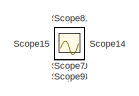
[diagram: root canvas - part 1/5, top left region]
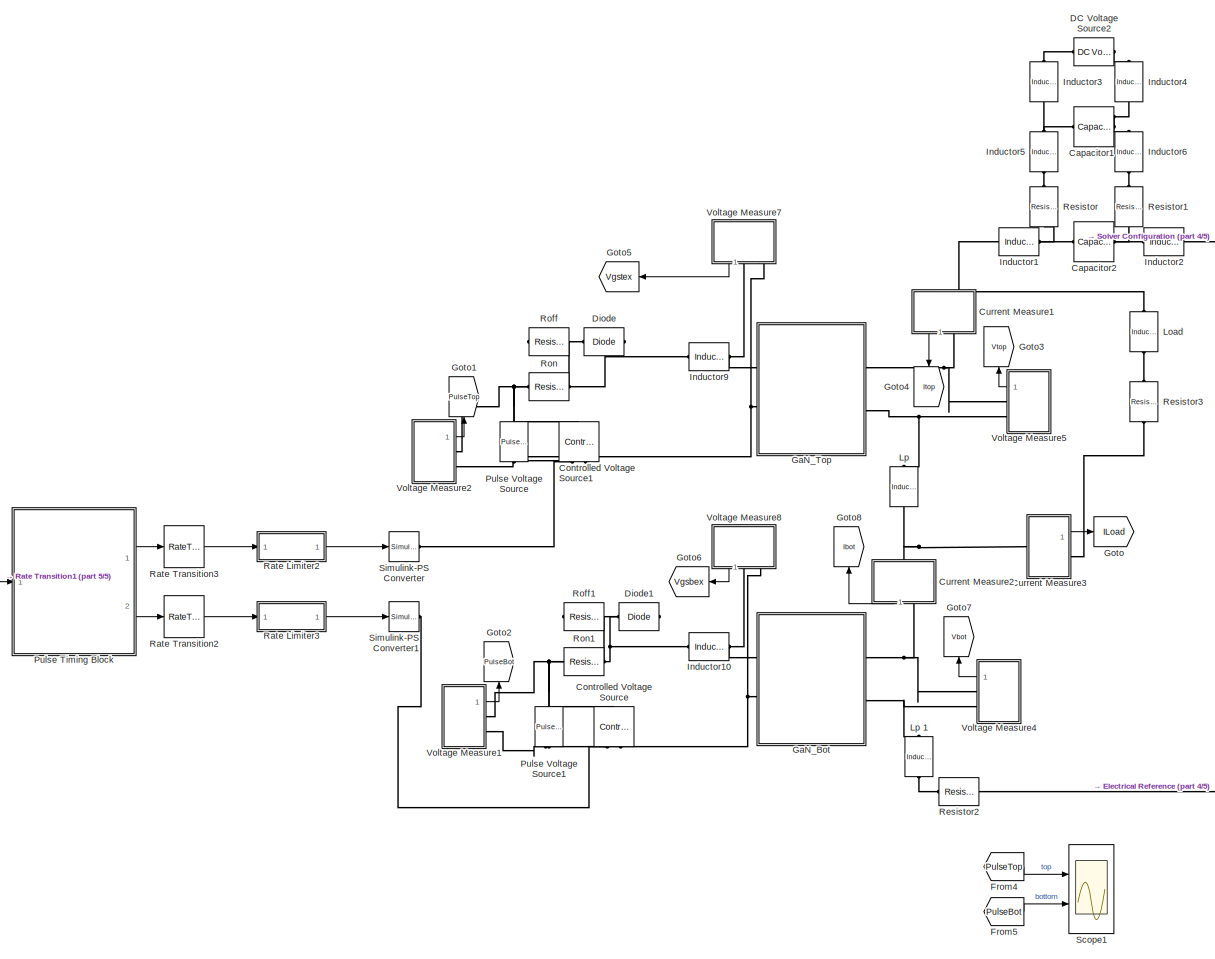
[diagram: root canvas - part 2/5, middle left region]
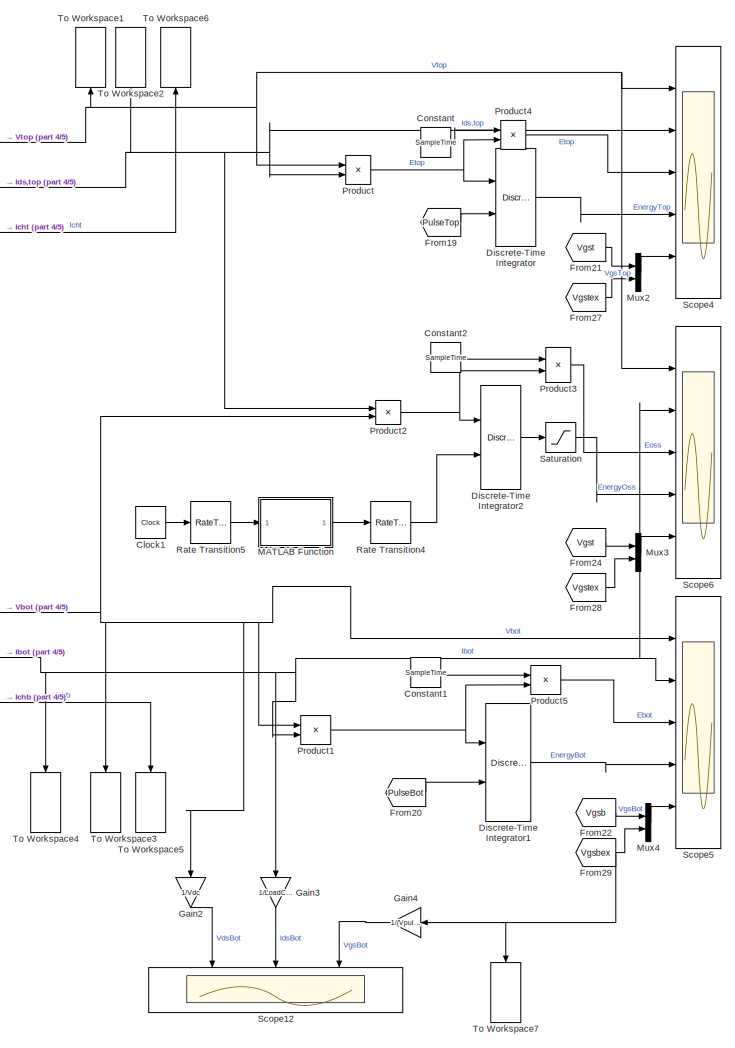
[diagram: root canvas - part 3/5, right side, full height]
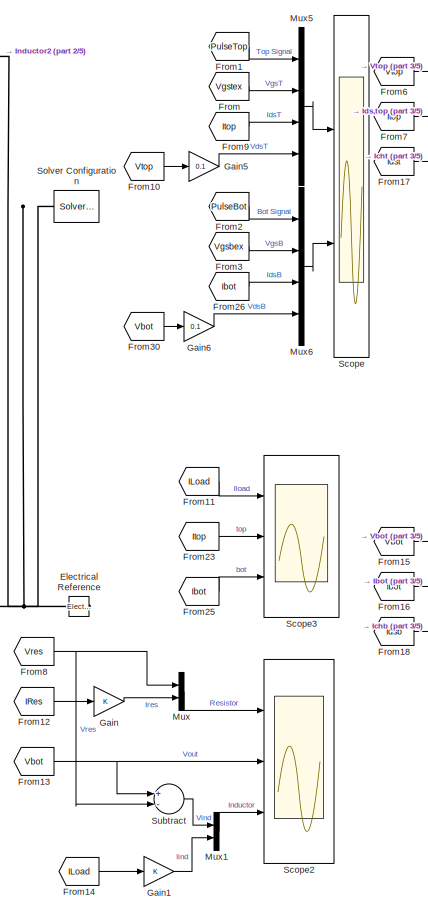
[diagram: root canvas - part 4/5, central region]
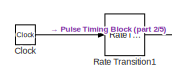
[diagram: root canvas - part 5/5, middle left region]
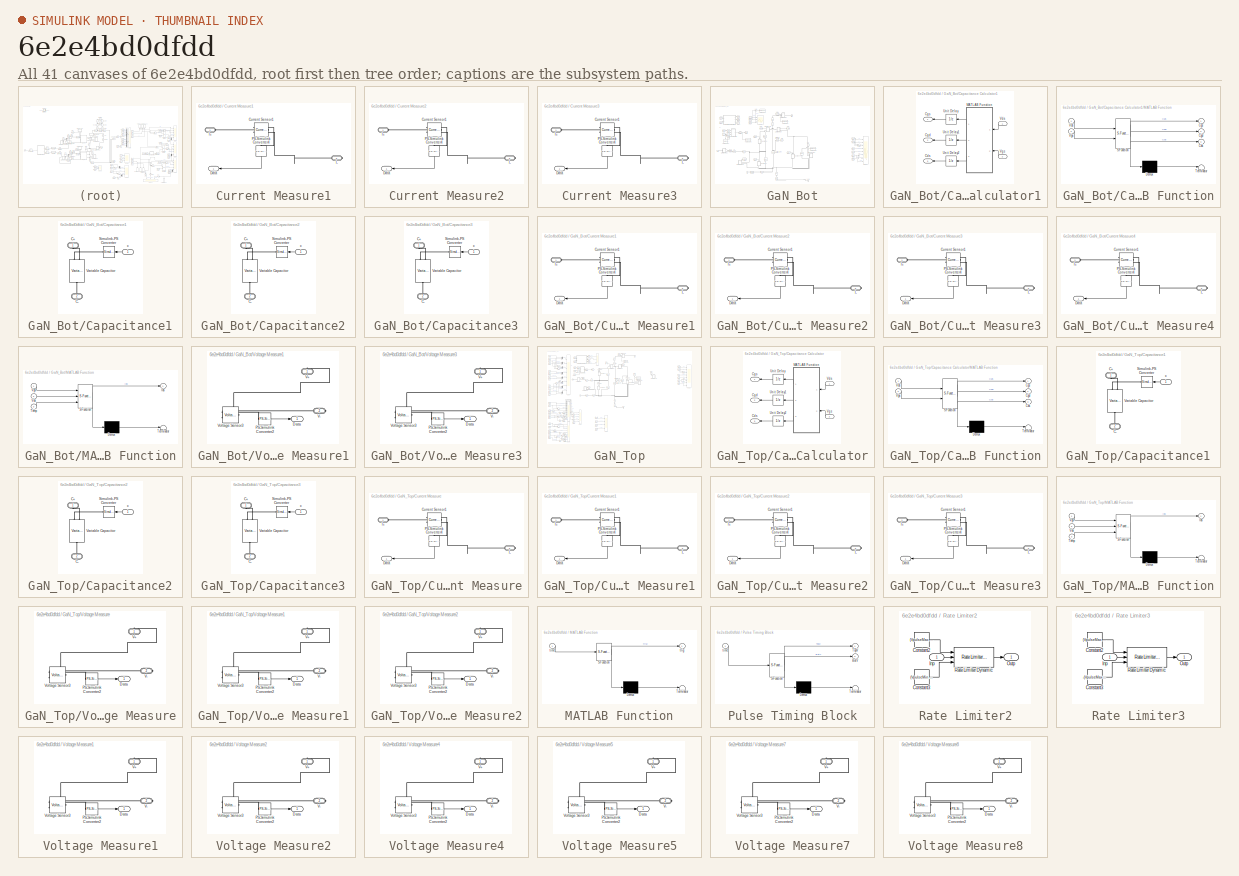
[diagram: thumbnail index - all 41 canvases of the model, root first then tree order]
MODEL slx_6e2e4bd0dfdd
KIND model
CONFIG AbsTol = auto
CONFIG FixedStep = SampleTime
CONFIG MaxStep = auto
CONFIG MinStep = auto
CONFIG RelTol = 1e-3
CONFIG SampleTimeConstraint = Unconstrained
CONFIG Solver = FixedStepDiscrete
CONFIG SolverMode = Auto
CONFIG SolverName = FixedStepDiscrete
CONFIG StartTime = 0.0
CONFIG StopTime = 3e-6
BLOCK [Reference] Capacitor1  REF=elec_lib/Passive Devices/Capacitor
  Ports = [0, 0, 0, 0, 0, 1, 1]
  SourceBlock = elec_lib/Passive Devices/Capacitor
  SourceType = Capacitor
BLOCK [Reference] Capacitor2  REF=elec_lib/Passive Devices/Capacitor
  Ports = [0, 0, 0, 0, 0, 1, 1]
  SourceBlock = elec_lib/Passive Devices/Capacitor
  SourceType = Capacitor
BLOCK [Clock] Clock
  Commented = on
BLOCK [Clock] Clock1
  Commented = on
BLOCK [Constant] Constant
  Commented = on
  Value = SampleTime
BLOCK [Constant] Constant1
  Commented = on
  Value = SampleTime
BLOCK [Constant] Constant2
  Commented = on
  Value = SampleTime
BLOCK [Reference] Controlled Voltage Source  REF=fl_lib/Electrical/Electrical Sources/Controlled Voltage
Source
  Commented = on
  Ports = [0, 0, 0, 0, 0, 1, 2]
  SourceBlock = fl_lib/Electrical/Electrical Sources/Controlled Voltage\nSource
  SourceType = Controlled Voltage\nSource
BLOCK [Reference] Controlled Voltage Source1  REF=fl_lib/Electrical/Electrical Sources/Controlled Voltage
Source
  Commented = on
  Ports = [0, 0, 0, 0, 0, 1, 2]
  SourceBlock = fl_lib/Electrical/Electrical Sources/Controlled Voltage\nSource
  SourceType = Controlled Voltage\nSource
BLOCK [SubSystem] Current Measure1
  Ports = [0, 1, 0, 0, 0, 1, 1]
  RequestExecContextInheritance = off
  Variant = off
BLOCK [Reference] Current Measure1/Current Sensor1  REF=fl_lib/Electrical/Electrical Sensors/Current Sensor
  Ports = [0, 0, 0, 0, 0, 1, 2]
  SourceBlock = fl_lib/Electrical/Electrical Sensors/Current Sensor
  SourceType = Current Sensor
BLOCK [Outport] Current Measure1/Data
  IconDisplay = Port number
BLOCK [PMIOPort] Current Measure1/I+
  Port = 1
  Side = Left
BLOCK [PMIOPort] Current Measure1/I-
  Port = 2
  Side = Right
BLOCK [Reference] Current Measure1/PS-Simulink Converter4  REF=nesl_utility/PS-Simulink
Converter
  Ports = [0, 1, 0, 0, 0, 1]
  SourceBlock = nesl_utility/PS-Simulink\nConverter
  SourceType = PS-Simulink\nConverter
BLOCK [SubSystem] Current Measure2
  Ports = [0, 1, 0, 0, 0, 1, 1]
  RequestExecContextInheritance = off
  Variant = off
BLOCK [Reference] Current Measure2/Current Sensor1  REF=fl_lib/Electrical/Electrical Sensors/Current Sensor
  Ports = [0, 0, 0, 0, 0, 1, 2]
  SourceBlock = fl_lib/Electrical/Electrical Sensors/Current Sensor
  SourceType = Current Sensor
BLOCK [Outport] Current Measure2/Data
  IconDisplay = Port number
BLOCK [PMIOPort] Current Measure2/I+
  Port = 1
  Side = Left
BLOCK [PMIOPort] Current Measure2/I-
  Port = 2
  Side = Right
BLOCK [Reference] Current Measure2/PS-Simulink Converter4  REF=nesl_utility/PS-Simulink
Converter
  Ports = [0, 1, 0, 0, 0, 1]
  SourceBlock = nesl_utility/PS-Simulink\nConverter
  SourceType = PS-Simulink\nConverter
BLOCK [SubSystem] Current Measure3
  Ports = [0, 1, 0, 0, 0, 1, 1]
  RequestExecContextInheritance = off
  Variant = off
BLOCK [Reference] Current Measure3/Current Sensor1  REF=fl_lib/Electrical/Electrical Sensors/Current Sensor
  Ports = [0, 0, 0, 0, 0, 1, 2]
  SourceBlock = fl_lib/Electrical/Electrical Sensors/Current Sensor
  SourceType = Current Sensor
BLOCK [Outport] Current Measure3/Data
  IconDisplay = Port number
BLOCK [PMIOPort] Current Measure3/I+
  Port = 1
  Side = Left
BLOCK [PMIOPort] Current Measure3/I-
  Port = 2
  Side = Right
BLOCK [Reference] Current Measure3/PS-Simulink Converter4  REF=nesl_utility/PS-Simulink
Converter
  Ports = [0, 1, 0, 0, 0, 1]
  SourceBlock = nesl_utility/PS-Simulink\nConverter
  SourceType = PS-Simulink\nConverter
BLOCK [Reference] DC Voltage Source2  REF=elec_lib/Additional
Components/SPICE-Compatible
Components/Sources/DC Voltage Source
  Ports = [0, 0, 0, 0, 0, 1, 1]
  SourceBlock = elec_lib/Additional\nComponents/SPICE-Compatible\nComponents/Sources/DC Voltage Source
  SourceType = DC Voltage Source
BLOCK [Reference] Diode  REF=elec_lib/Semiconductor
Devices/Diode
  Ports = [0, 0, 0, 0, 0, 1, 1]
  SourceBlock = elec_lib/Semiconductor\nDevices/Diode
  SourceType = Diode
BLOCK [Reference] Diode1  REF=elec_lib/Semiconductor
Devices/Diode
  Ports = [0, 0, 0, 0, 0, 1, 1]
  SourceBlock = elec_lib/Semiconductor\nDevices/Diode
  SourceType = Diode
BLOCK [DiscreteIntegrator] Discrete-Time Integrator
  Commented = on
  ExternalReset = either
  ICPrevOutput = DiscIntNeverNeededParam
  ICPrevScaledInput = DiscIntNeverNeededParam
  InitialConditionSetting = State (most efficient)
  Ports = [2, 1]
  SampleTime = -1
BLOCK [DiscreteIntegrator] Discrete-Time Integrator1
  Commented = on
  ExternalReset = either
  ICPrevOutput = DiscIntNeverNeededParam
  ICPrevScaledInput = DiscIntNeverNeededParam
  InitialConditionSetting = State (most efficient)
  Ports = [2, 1]
  SampleTime = -1
BLOCK [DiscreteIntegrator] Discrete-Time Integrator2
  Commented = on
  ExternalReset = either
  ICPrevOutput = DiscIntNeverNeededParam
  ICPrevScaledInput = DiscIntNeverNeededParam
  InitialConditionSetting = State (most efficient)
  Ports = [2, 1]
  SampleTime = -1
BLOCK [Reference] Electrical Reference  REF=fl_lib/Electrical/Electrical Elements/Electrical Reference
  Ports = [0, 0, 0, 0, 0, 1]
  SourceBlock = fl_lib/Electrical/Electrical Elements/Electrical Reference
  SourceType = Electrical Reference
BLOCK [From] From
  GotoTag = Vgstex
BLOCK [From] From1
  GotoTag = PulseTop
BLOCK [From] From10
  GotoTag = Vtop
BLOCK [From] From11
  Commented = on
  GotoTag = ILoad
BLOCK [From] From12
  Commented = on
  GotoTag = IRes
BLOCK [From] From13
  Commented = on
  GotoTag = Vbot
BLOCK [From] From14
  Commented = on
  GotoTag = ILoad
BLOCK [From] From15
  Commented = on
  GotoTag = Vbot
BLOCK [From] From16
  Commented = on
  GotoTag = Ibot
BLOCK [From] From17
  Commented = on
  GotoTag = Idst
  TagVisibility = global
BLOCK [From] From18
  Commented = on
  GotoTag = Idsb
  TagVisibility = global
BLOCK [From] From19
  Commented = on
  GotoTag = PulseTop
BLOCK [From] From2
  GotoTag = PulseBot
BLOCK [From] From20
  Commented = on
  GotoTag = PulseBot
BLOCK [From] From21
  Commented = on
  GotoTag = Vgst
  TagVisibility = global
BLOCK [From] From22
  Commented = on
  GotoTag = Vgsb
  TagVisibility = global
BLOCK [From] From23
  Commented = on
  GotoTag = Itop
BLOCK [From] From24
  Commented = on
  GotoTag = Vgst
  TagVisibility = global
BLOCK [From] From25
  Commented = on
  GotoTag = Ibot
BLOCK [From] From26
  GotoTag = Ibot
BLOCK [From] From27
  Commented = on
  GotoTag = Vgstex
BLOCK [From] From28
  Commented = on
  GotoTag = Vgstex
BLOCK [From] From29
  Commented = on
  GotoTag = Vgsbex
BLOCK [From] From3
  GotoTag = Vgsbex
BLOCK [From] From30
  GotoTag = Vbot
BLOCK [From] From4
  GotoTag = PulseTop
BLOCK [From] From5
  GotoTag = PulseBot
BLOCK [From] From6
  Commented = on
  GotoTag = Vtop
BLOCK [From] From7
  Commented = on
  GotoTag = Itop
BLOCK [From] From8
  Commented = on
  GotoTag = Vres
BLOCK [From] From9
  GotoTag = Itop
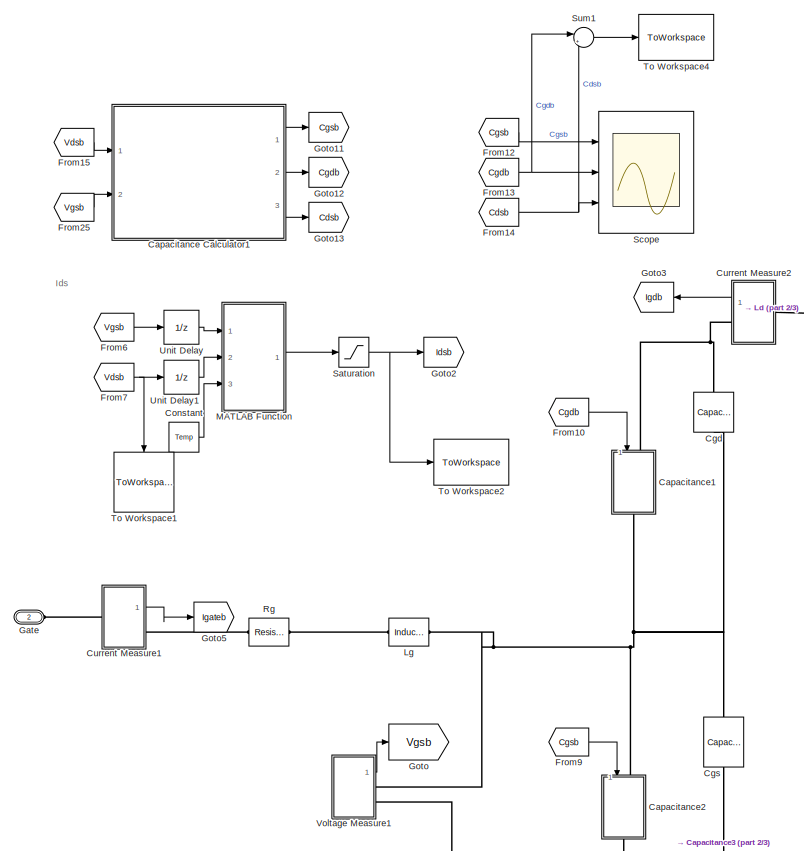
[diagram: GaN_Bot - part 1/3, left side, full height]
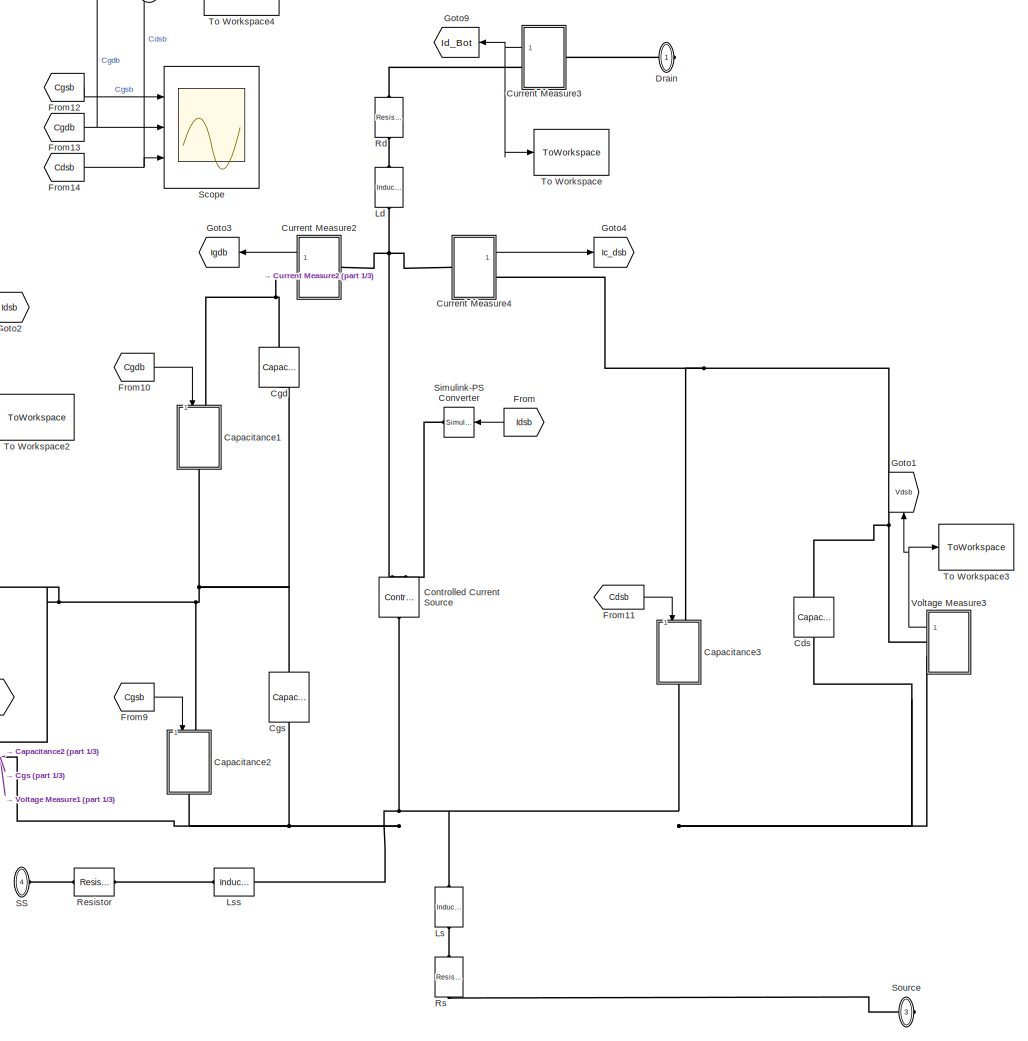
[diagram: GaN_Bot - part 2/3, center side, full height]
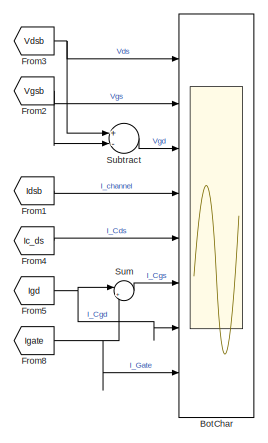
[diagram: GaN_Bot - part 3/3, middle right region]
BLOCK [SubSystem] GaN_Bot
  Ports = [0, 0, 0, 0, 0, 2, 2]
  RequestExecContextInheritance = off
  Variant = off
BLOCK [Scope] GaN_Bot/BotChar
  Commented = on
  NumInputPorts = 8
  Ports = [8]
  ScopeSpecificationString = Simulink.scopes.TimeScopeBlockCfg('CurrentConfiguration', extmgr.ConfigurationSet(extmgr.Configuration('Core','General UI',true),extmgr.Configuration('Core','Source UI',true),extmgr.Configuration('Sources','WiredSimulink',true,'DataLoggingVariableName','ScopeData2'),extmgr.Configuration('Visuals','Time Domain',true,'SerializedDisplays',{struct('MinYLimReal','-24.10407','MaxYLimReal','318.42783','Y...<+6722ch>
BLOCK [SubSystem] GaN_Bot/Capacitance Calculator1
  Ports = [2, 3]
  RequestExecContextInheritance = off
  Variant = off
BLOCK [Outport] GaN_Bot/Capacitance Calculator1/Cds
  IconDisplay = Port number
  Port = 3
BLOCK [Outport] GaN_Bot/Capacitance Calculator1/Cgd
  IconDisplay = Port number
  Port = 2
BLOCK [Outport] GaN_Bot/Capacitance Calculator1/Cgs
  IconDisplay = Port number
BLOCK [SubSystem] GaN_Bot/Capacitance Calculator1/MATLAB Function
  ErrorFcn = Stateflow.Translate.translate
  PermitHierarchicalResolution = ExplicitOnly
  Ports = [2, 3]
  RequestExecContextInheritance = off
  SFBlockType = MATLAB Function
  TreatAsAtomicUnit = on
  Variant = off
BLOCK [Demux] GaN_Bot/Capacitance Calculator1/MATLAB Function/ Demux 
  Outputs = 1
  Ports = [1, 1]
BLOCK [S-Function] GaN_Bot/Capacitance Calculator1/MATLAB Function/ SFunction 
  EnableBusSupport = on
  FunctionName = sf_sfun
  PortCounts = [2 4]
  Ports = [2, 4]
  SFunctionDeploymentMode = off
  Tag = Stateflow S-Function DPTThermalGaNModelSLX 7
BLOCK [Terminator] GaN_Bot/Capacitance Calculator1/MATLAB Function/ Terminator 
BLOCK [Outport] GaN_Bot/Capacitance Calculator1/MATLAB Function/Cds
  IconDisplay = Port number
  Port = 3
BLOCK [Outport] GaN_Bot/Capacitance Calculator1/MATLAB Function/Cgd
  IconDisplay = Port number
  Port = 2
BLOCK [Outport] GaN_Bot/Capacitance Calculator1/MATLAB Function/Cgs
  IconDisplay = Port number
BLOCK [Inport] GaN_Bot/Capacitance Calculator1/MATLAB Function/Vds
  IconDisplay = Port number
BLOCK [Inport] GaN_Bot/Capacitance Calculator1/MATLAB Function/Vgs
  IconDisplay = Port number
  Port = 2
BLOCK [UnitDelay] GaN_Bot/Capacitance Calculator1/Unit Delay
  InitialCondition = 258e-12
  InputProcessing = Elements as channels (sample based)
  SampleTime = -1
BLOCK [UnitDelay] GaN_Bot/Capacitance Calculator1/Unit Delay1
  InitialCondition = 63e-12
  InputProcessing = Elements as channels (sample based)
  SampleTime = -1
BLOCK [UnitDelay] GaN_Bot/Capacitance Calculator1/Unit Delay2
  InitialCondition = 2e-12
  InputProcessing = Elements as channels (sample based)
  SampleTime = -1
BLOCK [Inport] GaN_Bot/Capacitance Calculator1/Vds
  IconDisplay = Port number
BLOCK [Inport] GaN_Bot/Capacitance Calculator1/Vgs
  IconDisplay = Port number
  Port = 2
BLOCK [SubSystem] GaN_Bot/Capacitance1
  Ports = [1, 0, 0, 0, 0, 1, 1]
  RequestExecContextInheritance = off
  Variant = off
BLOCK [PMIOPort] GaN_Bot/Capacitance1/C+
  Port = 1
  Side = Left
BLOCK [PMIOPort] GaN_Bot/Capacitance1/C-
  Port = 2
  Side = Right
BLOCK [Reference] GaN_Bot/Capacitance1/Simulink-PS Converter  REF=nesl_utility/Simulink-PS
Converter
  Ports = [1, 0, 0, 0, 0, 0, 1]
  SourceBlock = nesl_utility/Simulink-PS\nConverter
  SourceType = Simulink-PS\nConverter
BLOCK [Reference] GaN_Bot/Capacitance1/Variable Capacitor  REF=elec_lib/Passive Devices/Variable Capacitor
  Ports = [0, 0, 0, 0, 0, 2, 1]
  SourceBlock = elec_lib/Passive Devices/Variable Capacitor
  SourceType = Variable Capacitor
BLOCK [Inport] GaN_Bot/Capacitance1/c
  IconDisplay = Port number
BLOCK [SubSystem] GaN_Bot/Capacitance2
  Ports = [1, 0, 0, 0, 0, 1, 1]
  RequestExecContextInheritance = off
  Variant = off
BLOCK [PMIOPort] GaN_Bot/Capacitance2/C+
  Port = 1
  Side = Left
BLOCK [PMIOPort] GaN_Bot/Capacitance2/C-
  Port = 2
  Side = Right
BLOCK [Reference] GaN_Bot/Capacitance2/Simulink-PS Converter  REF=nesl_utility/Simulink-PS
Converter
  Ports = [1, 0, 0, 0, 0, 0, 1]
  SourceBlock = nesl_utility/Simulink-PS\nConverter
  SourceType = Simulink-PS\nConverter
BLOCK [Reference] GaN_Bot/Capacitance2/Variable Capacitor  REF=elec_lib/Passive Devices/Variable Capacitor
  Ports = [0, 0, 0, 0, 0, 2, 1]
  SourceBlock = elec_lib/Passive Devices/Variable Capacitor
  SourceType = Variable Capacitor
BLOCK [Inport] GaN_Bot/Capacitance2/c
  IconDisplay = Port number
BLOCK [SubSystem] GaN_Bot/Capacitance3
  Ports = [1, 0, 0, 0, 0, 1, 1]
  RequestExecContextInheritance = off
  Variant = off
BLOCK [PMIOPort] GaN_Bot/Capacitance3/C+
  Port = 1
  Side = Left
BLOCK [PMIOPort] GaN_Bot/Capacitance3/C-
  Port = 2
  Side = Right
BLOCK [Reference] GaN_Bot/Capacitance3/Simulink-PS Converter  REF=nesl_utility/Simulink-PS
Converter
  Ports = [1, 0, 0, 0, 0, 0, 1]
  SourceBlock = nesl_utility/Simulink-PS\nConverter
  SourceType = Simulink-PS\nConverter
BLOCK [Reference] GaN_Bot/Capacitance3/Variable Capacitor  REF=elec_lib/Passive Devices/Variable Capacitor
  Ports = [0, 0, 0, 0, 0, 2, 1]
  SourceBlock = elec_lib/Passive Devices/Variable Capacitor
  SourceType = Variable Capacitor
BLOCK [Inport] GaN_Bot/Capacitance3/c
  IconDisplay = Port number
BLOCK [Reference] GaN_Bot/Cds  REF=elec_lib/Passive Devices/Capacitor
  Commented = on
  Ports = [0, 0, 0, 0, 0, 1, 1]
  SourceBlock = elec_lib/Passive Devices/Capacitor
  SourceType = Capacitor
BLOCK [Reference] GaN_Bot/Cgd  REF=elec_lib/Passive Devices/Capacitor
  Commented = on
  Ports = [0, 0, 0, 0, 0, 1, 1]
  SourceBlock = elec_lib/Passive Devices/Capacitor
  SourceType = Capacitor
BLOCK [Reference] GaN_Bot/Cgs  REF=elec_lib/Passive Devices/Capacitor
  Commented = on
  Ports = [0, 0, 0, 0, 0, 1, 1]
  SourceBlock = elec_lib/Passive Devices/Capacitor
  SourceType = Capacitor
BLOCK [Constant] GaN_Bot/Constant
  Value = Temp
BLOCK [Reference] GaN_Bot/Controlled Current Source  REF=fl_lib/Electrical/Electrical Sources/Controlled Current
Source
  Ports = [0, 0, 0, 0, 0, 1, 2]
  SourceBlock = fl_lib/Electrical/Electrical Sources/Controlled Current\nSource
  SourceType = Controlled Current\nSource
BLOCK [SubSystem] GaN_Bot/Current Measure1
  Ports = [0, 1, 0, 0, 0, 1, 1]
  RequestExecContextInheritance = off
  Variant = off
BLOCK [Reference] GaN_Bot/Current Measure1/Current Sensor1  REF=fl_lib/Electrical/Electrical Sensors/Current Sensor
  Ports = [0, 0, 0, 0, 0, 1, 2]
  SourceBlock = fl_lib/Electrical/Electrical Sensors/Current Sensor
  SourceType = Current Sensor
BLOCK [Outport] GaN_Bot/Current Measure1/Data
  IconDisplay = Port number
BLOCK [PMIOPort] GaN_Bot/Current Measure1/I+
  Port = 1
  Side = Left
BLOCK [PMIOPort] GaN_Bot/Current Measure1/I-
  Port = 2
  Side = Right
BLOCK [Reference] GaN_Bot/Current Measure1/PS-Simulink Converter4  REF=nesl_utility/PS-Simulink
Converter
  Ports = [0, 1, 0, 0, 0, 1]
  SourceBlock = nesl_utility/PS-Simulink\nConverter
  SourceType = PS-Simulink\nConverter
BLOCK [SubSystem] GaN_Bot/Current Measure2
  Ports = [0, 1, 0, 0, 0, 1, 1]
  RequestExecContextInheritance = off
  Variant = off
BLOCK [Reference] GaN_Bot/Current Measure2/Current Sensor1  REF=fl_lib/Electrical/Electrical Sensors/Current Sensor
  Ports = [0, 0, 0, 0, 0, 1, 2]
  SourceBlock = fl_lib/Electrical/Electrical Sensors/Current Sensor
  SourceType = Current Sensor
BLOCK [Outport] GaN_Bot/Current Measure2/Data
  IconDisplay = Port number
BLOCK [PMIOPort] GaN_Bot/Current Measure2/I+
  Port = 1
  Side = Left
BLOCK [PMIOPort] GaN_Bot/Current Measure2/I-
  Port = 2
  Side = Right
BLOCK [Reference] GaN_Bot/Current Measure2/PS-Simulink Converter4  REF=nesl_utility/PS-Simulink
Converter
  Ports = [0, 1, 0, 0, 0, 1]
  SourceBlock = nesl_utility/PS-Simulink\nConverter
  SourceType = PS-Simulink\nConverter
BLOCK [SubSystem] GaN_Bot/Current Measure3
  Ports = [0, 1, 0, 0, 0, 1, 1]
  RequestExecContextInheritance = off
  Variant = off
BLOCK [Reference] GaN_Bot/Current Measure3/Current Sensor1  REF=fl_lib/Electrical/Electrical Sensors/Current Sensor
  Ports = [0, 0, 0, 0, 0, 1, 2]
  SourceBlock = fl_lib/Electrical/Electrical Sensors/Current Sensor
  SourceType = Current Sensor
BLOCK [Outport] GaN_Bot/Current Measure3/Data
  IconDisplay = Port number
BLOCK [PMIOPort] GaN_Bot/Current Measure3/I+
  Port = 1
  Side = Left
BLOCK [PMIOPort] GaN_Bot/Current Measure3/I-
  Port = 2
  Side = Right
BLOCK [Reference] GaN_Bot/Current Measure3/PS-Simulink Converter4  REF=nesl_utility/PS-Simulink
Converter
  Ports = [0, 1, 0, 0, 0, 1]
  SourceBlock = nesl_utility/PS-Simulink\nConverter
  SourceType = PS-Simulink\nConverter
BLOCK [SubSystem] GaN_Bot/Current Measure4
  Ports = [0, 1, 0, 0, 0, 1, 1]
  RequestExecContextInheritance = off
  Variant = off
BLOCK [Reference] GaN_Bot/Current Measure4/Current Sensor1  REF=fl_lib/Electrical/Electrical Sensors/Current Sensor
  Ports = [0, 0, 0, 0, 0, 1, 2]
  SourceBlock = fl_lib/Electrical/Electrical Sensors/Current Sensor
  SourceType = Current Sensor
BLOCK [Outport] GaN_Bot/Current Measure4/Data
  IconDisplay = Port number
BLOCK [PMIOPort] GaN_Bot/Current Measure4/I+
  Port = 1
  Side = Left
BLOCK [PMIOPort] GaN_Bot/Current Measure4/I-
  Port = 2
  Side = Right
BLOCK [Reference] GaN_Bot/Current Measure4/PS-Simulink Converter4  REF=nesl_utility/PS-Simulink
Converter
  Ports = [0, 1, 0, 0, 0, 1]
  SourceBlock = nesl_utility/PS-Simulink\nConverter
  SourceType = PS-Simulink\nConverter
BLOCK [PMIOPort] GaN_Bot/Drain
  Port = 1
  Side = Right
BLOCK [From] GaN_Bot/From
  GotoTag = Idsb
  TagVisibility = global
BLOCK [From] GaN_Bot/From1
  Commented = on
  GotoTag = Idsb
  TagVisibility = global
BLOCK [From] GaN_Bot/From10
  GotoTag = Cgdb
BLOCK [From] GaN_Bot/From11
  GotoTag = Cdsb
BLOCK [From] GaN_Bot/From12
  GotoTag = Cgsb
BLOCK [From] GaN_Bot/From13
  GotoTag = Cgdb
BLOCK [From] GaN_Bot/From14
  GotoTag = Cdsb
BLOCK [From] GaN_Bot/From15
  GotoTag = Vdsb
  TagVisibility = global
BLOCK [From] GaN_Bot/From2
  Commented = on
  GotoTag = Vgsb
  TagVisibility = global
BLOCK [From] GaN_Bot/From25
  GotoTag = Vgsb
  TagVisibility = global
BLOCK [From] GaN_Bot/From3
  Commented = on
  GotoTag = Vdsb
  TagVisibility = global
BLOCK [From] GaN_Bot/From4
  Commented = on
  GotoTag = Ic_ds
BLOCK [From] GaN_Bot/From5
  Commented = on
  GotoTag = Igd
BLOCK [From] GaN_Bot/From6
  GotoTag = Vgsb
  TagVisibility = global
BLOCK [From] GaN_Bot/From7
  GotoTag = Vdsb
  TagVisibility = global
BLOCK [From] GaN_Bot/From8
  Commented = on
  GotoTag = Igate
BLOCK [From] GaN_Bot/From9
  GotoTag = Cgsb
BLOCK [PMIOPort] GaN_Bot/Gate
  Port = 2
  Side = Left
BLOCK [Goto] GaN_Bot/Goto
  GotoTag = Vgsb
  TagVisibility = global
BLOCK [Goto] GaN_Bot/Goto1
  GotoTag = Vdsb
  TagVisibility = global
BLOCK [Goto] GaN_Bot/Goto11
  GotoTag = Cgsb
BLOCK [Goto] GaN_Bot/Goto12
  GotoTag = Cgdb
BLOCK [Goto] GaN_Bot/Goto13
  GotoTag = Cdsb
BLOCK [Goto] GaN_Bot/Goto2
  GotoTag = Idsb
  TagVisibility = global
BLOCK [Goto] GaN_Bot/Goto3
  GotoTag = Igdb
  TagVisibility = global
BLOCK [Goto] GaN_Bot/Goto4
  GotoTag = Ic_dsb
  TagVisibility = global
BLOCK [Goto] GaN_Bot/Goto5
  GotoTag = Igateb
  TagVisibility = global
BLOCK [Goto] GaN_Bot/Goto9
  GotoTag = Id_Bot
  TagVisibility = global
BLOCK [Reference] GaN_Bot/Ld  REF=elec_lib/Passive Devices/Inductor
  Ports = [0, 0, 0, 0, 0, 1, 1]
  SourceBlock = elec_lib/Passive Devices/Inductor
  SourceType = Inductor
BLOCK [Reference] GaN_Bot/Lg   REF=elec_lib/Passive Devices/Inductor
  Ports = [0, 0, 0, 0, 0, 1, 1]
  SourceBlock = elec_lib/Passive Devices/Inductor
  SourceType = Inductor
BLOCK [Reference] GaN_Bot/Ls  REF=elec_lib/Passive Devices/Inductor
  Ports = [0, 0, 0, 0, 0, 1, 1]
  SourceBlock = elec_lib/Passive Devices/Inductor
  SourceType = Inductor
BLOCK [Reference] GaN_Bot/Lss  REF=elec_lib/Passive Devices/Inductor
  Ports = [0, 0, 0, 0, 0, 1, 1]
  SourceBlock = elec_lib/Passive Devices/Inductor
  SourceType = Inductor
BLOCK [SubSystem] GaN_Bot/MATLAB Function
  ErrorFcn = Stateflow.Translate.translate
  PermitHierarchicalResolution = ExplicitOnly
  Ports = [3, 1]
  RequestExecContextInheritance = off
  SFBlockType = MATLAB Function
  TreatAsAtomicUnit = on
  Variant = off
BLOCK [Demux] GaN_Bot/MATLAB Function/ Demux 
  Outputs = 1
  Ports = [1, 1]
BLOCK [S-Function] GaN_Bot/MATLAB Function/ SFunction 
  EnableBusSupport = on
  FunctionName = sf_sfun
  PortCounts = [3 2]
  Ports = [3, 2]
  SFunctionDeploymentMode = off
  Tag = Stateflow S-Function DPTThermalGaNModelSLX 1
BLOCK [Terminator] GaN_Bot/MATLAB Function/ Terminator 
BLOCK [Outport] GaN_Bot/MATLAB Function/Ids
  IconDisplay = Port number
BLOCK [Inport] GaN_Bot/MATLAB Function/Temp
  IconDisplay = Port number
  Port = 3
BLOCK [Inport] GaN_Bot/MATLAB Function/Vds
  IconDisplay = Port number
  Port = 2
BLOCK [Inport] GaN_Bot/MATLAB Function/Vgs
  IconDisplay = Port number
BLOCK [Reference] GaN_Bot/Rd  REF=elec_lib/Passive Devices/Resistor
  Ports = [0, 0, 0, 0, 0, 1, 1]
  SourceBlock = elec_lib/Passive Devices/Resistor
  SourceType = Resistor
BLOCK [Reference] GaN_Bot/Resistor  REF=elec_lib/Passive Devices/Resistor
  Ports = [0, 0, 0, 0, 0, 1, 1]
  SourceBlock = elec_lib/Passive Devices/Resistor
  SourceType = Resistor
BLOCK [Reference] GaN_Bot/Rg  REF=elec_lib/Passive Devices/Resistor
  Ports = [0, 0, 0, 0, 0, 1, 1]
  SourceBlock = elec_lib/Passive Devices/Resistor
  SourceType = Resistor
BLOCK [Reference] GaN_Bot/Rs  REF=elec_lib/Passive Devices/Resistor
  Ports = [0, 0, 0, 0, 0, 1, 1]
  SourceBlock = elec_lib/Passive Devices/Resistor
  SourceType = Resistor
BLOCK [PMIOPort] GaN_Bot/SS
  Port = 4
  Side = Left
BLOCK [Saturate] GaN_Bot/Saturation
  InputPortMap = u0
  LowerLimit = -200
  Ports = [1, 1]
  UpperLimit = 200
BLOCK [Scope] GaN_Bot/Scope
  NumInputPorts = 3
  Ports = [3]
  ScopeSpecificationString = Simulink.scopes.TimeScopeBlockCfg('CurrentConfiguration', extmgr.ConfigurationSet(extmgr.Configuration('Core','General UI',true),extmgr.Configuration('Core','Source UI',true),extmgr.Configuration('Sources','WiredSimulink',true,'DataLoggingVariableName','ScopeData1','DataLoggingSaveFormat','Array','DataLoggingDecimation','1','DataLoggingDecimateData',true),extmgr.Configuration('Visuals','Time Domai...<+3196ch>
BLOCK [Reference] GaN_Bot/Simulink-PS Converter  REF=nesl_utility/Simulink-PS
Converter
  Ports = [1, 0, 0, 0, 0, 0, 1]
  SourceBlock = nesl_utility/Simulink-PS\nConverter
  SourceType = Simulink-PS\nConverter
BLOCK [PMIOPort] GaN_Bot/Source
  Port = 3
  Side = Right
BLOCK [Sum] GaN_Bot/Subtract
  Commented = on
  InputSameDT = off
  Inputs = +-
  OutDataTypeStr = Inherit: Inherit via internal rule
  Ports = [2, 1]
  SaturateOnIntegerOverflow = off
BLOCK [Sum] GaN_Bot/Sum
  Commented = on
  IconShape = round
  InputSameDT = off
  Inputs = |++
  OutDataTypeStr = Inherit: Inherit via internal rule
  Ports = [2, 1]
  SaturateOnIntegerOverflow = off
BLOCK [Sum] GaN_Bot/Sum1
  IconShape = round
  InputSameDT = off
  Inputs = |++
  OutDataTypeStr = Inherit: Inherit via internal rule
  Ports = [2, 1]
  SaturateOnIntegerOverflow = off
BLOCK [ToWorkspace] GaN_Bot/To Workspace
  Commented = on
  FixptAsFi = on
  MaxDataPoints = inf
  Ports = [1]
  SampleTime = -1
  Save2DSignal = 2-D array (concatenate along first dimension)
  VariableName = BotCurrentDS
BLOCK [ToWorkspace] GaN_Bot/To Workspace1
  Commented = on
  FixptAsFi = on
  MaxDataPoints = inf
  Ports = [1]
  SampleTime = -1
  Save2DSignal = 2-D array (concatenate along first dimension)
  VariableName = BotVoltageDSInd
BLOCK [ToWorkspace] GaN_Bot/To Workspace2
  Commented = on
  FixptAsFi = on
  MaxDataPoints = inf
  Ports = [1]
  SampleTime = -1
  Save2DSignal = 2-D array (concatenate along first dimension)
  VariableName = BotChCurrInd
BLOCK [ToWorkspace] GaN_Bot/To Workspace3
  Commented = on
  FixptAsFi = on
  MaxDataPoints = inf
  Ports = [1]
  SampleTime = -1
  Save2DSignal = 2-D array (concatenate along first dimension)
  VariableName = BotChVoltInd
BLOCK [ToWorkspace] GaN_Bot/To Workspace4
  Commented = on
  FixptAsFi = on
  MaxDataPoints = inf
  Ports = [1]
  SampleTime = -1
  Save2DSignal = 2-D array (concatenate along first dimension)
  VariableName = BotCoss
BLOCK [UnitDelay] GaN_Bot/Unit Delay
  InputProcessing = Elements as channels (sample based)
  SampleTime = -1
BLOCK [UnitDelay] GaN_Bot/Unit Delay1
  InputProcessing = Elements as channels (sample based)
  SampleTime = -1
BLOCK [SubSystem] GaN_Bot/Voltage Measure1
  Ports = [0, 1, 0, 0, 0, 0, 2]
  RequestExecContextInheritance = off
  Variant = off
BLOCK [Outport] GaN_Bot/Voltage Measure1/Data
  IconDisplay = Port number
BLOCK [Reference] GaN_Bot/Voltage Measure1/PS-Simulink Converter2  REF=nesl_utility/PS-Simulink
Converter
  Ports = [0, 1, 0, 0, 0, 1]
  SourceBlock = nesl_utility/PS-Simulink\nConverter
  SourceType = PS-Simulink\nConverter
BLOCK [PMIOPort] GaN_Bot/Voltage Measure1/V+
  Port = 1
  Side = Right
BLOCK [PMIOPort] GaN_Bot/Voltage Measure1/V-
  Port = 2
  Side = Right
BLOCK [Reference] GaN_Bot/Voltage Measure1/Voltage Sensor3  REF=fl_lib/Electrical/Electrical Sensors/Voltage Sensor
  Ports = [0, 0, 0, 0, 0, 1, 2]
  SourceBlock = fl_lib/Electrical/Electrical Sensors/Voltage Sensor
  SourceType = Voltage Sensor
BLOCK [SubSystem] GaN_Bot/Voltage Measure3
  Ports = [0, 1, 0, 0, 0, 0, 2]
  RequestExecContextInheritance = off
  Variant = off
BLOCK [Outport] GaN_Bot/Voltage Measure3/Data
  IconDisplay = Port number
BLOCK [Reference] GaN_Bot/Voltage Measure3/PS-Simulink Converter2  REF=nesl_utility/PS-Simulink
Converter
  Ports = [0, 1, 0, 0, 0, 1]
  SourceBlock = nesl_utility/PS-Simulink\nConverter
  SourceType = PS-Simulink\nConverter
BLOCK [PMIOPort] GaN_Bot/Voltage Measure3/V+
  Port = 1
  Side = Right
BLOCK [PMIOPort] GaN_Bot/Voltage Measure3/V-
  Port = 2
  Side = Right
BLOCK [Reference] GaN_Bot/Voltage Measure3/Voltage Sensor3  REF=fl_lib/Electrical/Electrical Sensors/Voltage Sensor
  Ports = [0, 0, 0, 0, 0, 1, 2]
  SourceBlock = fl_lib/Electrical/Electrical Sensors/Voltage Sensor
  SourceType = Voltage Sensor
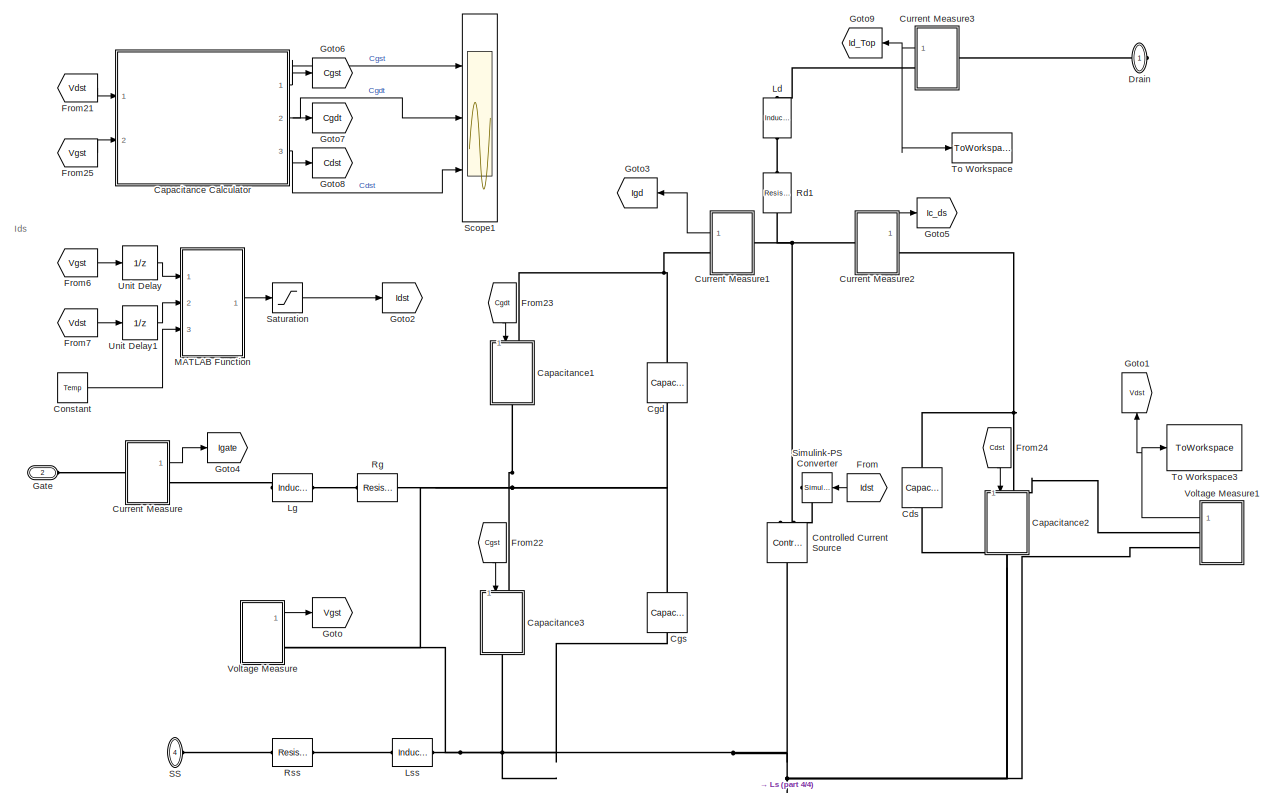
[diagram: GaN_Top - part 1/4, top center region]
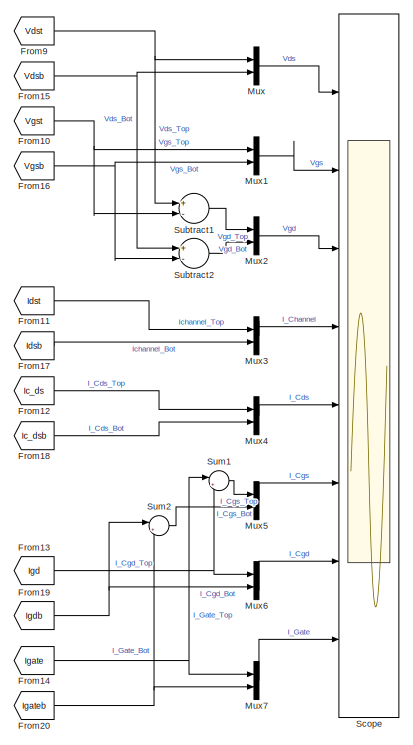
[diagram: GaN_Top - part 2/4, top left region]
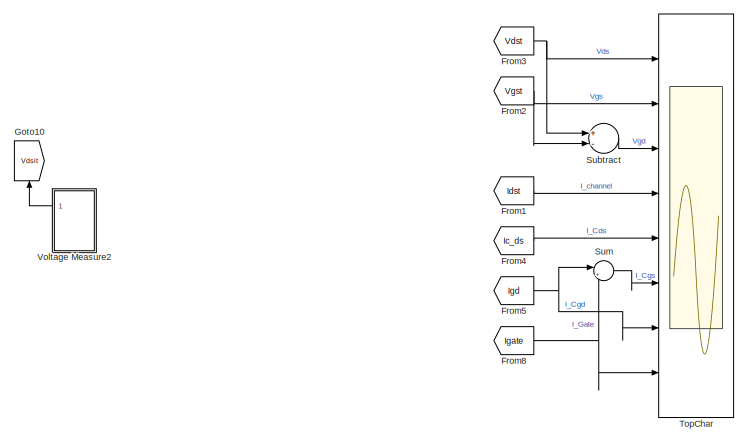
[diagram: GaN_Top - part 3/4, top right region]
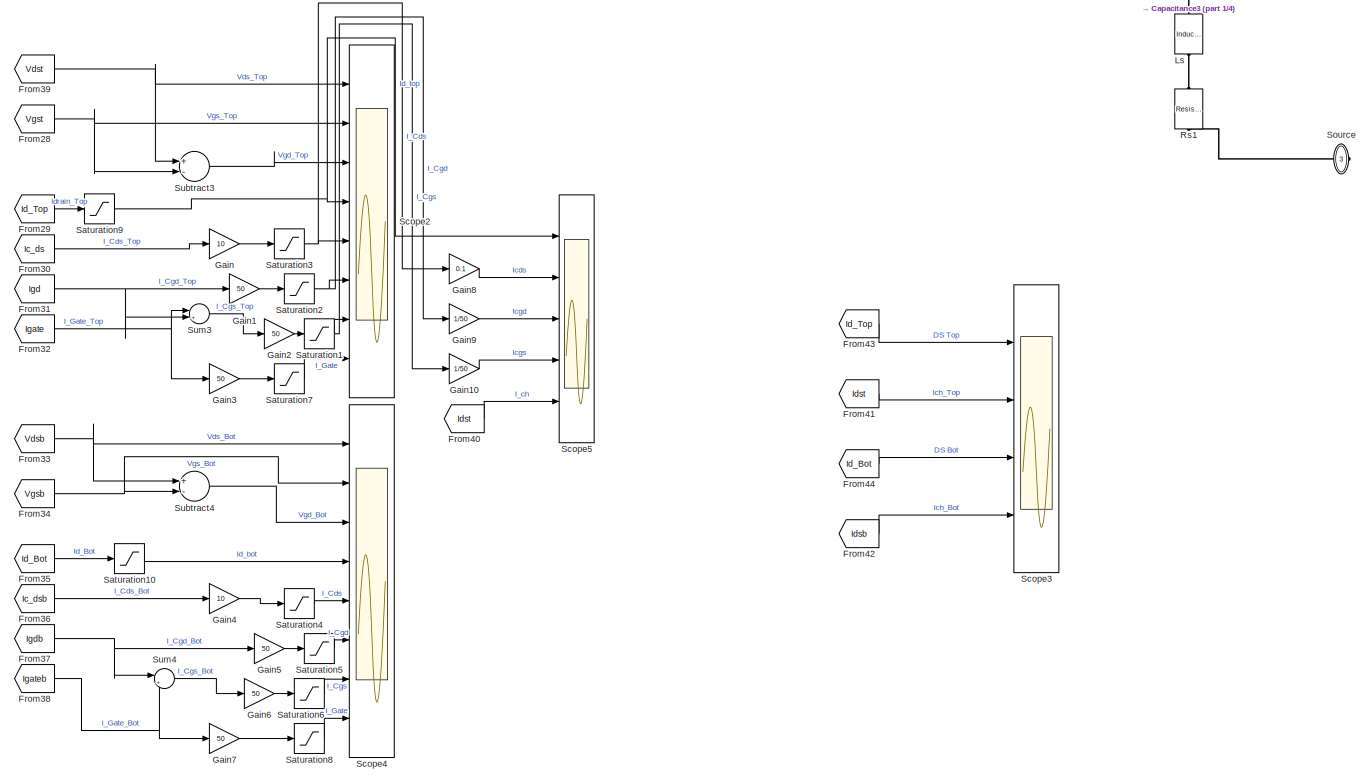
[diagram: GaN_Top - part 4/4, bottom left region]
BLOCK [SubSystem] GaN_Top
  Ports = [0, 0, 0, 0, 0, 2, 2]
  RequestExecContextInheritance = off
  Variant = off
BLOCK [SubSystem] GaN_Top/Capacitance Calculator
  Ports = [2, 3]
  RequestExecContextInheritance = off
  Variant = off
BLOCK [Outport] GaN_Top/Capacitance Calculator/Cds
  IconDisplay = Port number
  Port = 3
BLOCK [Outport] GaN_Top/Capacitance Calculator/Cgd
  IconDisplay = Port number
  Port = 2
BLOCK [Outport] GaN_Top/Capacitance Calculator/Cgs
  IconDisplay = Port number
BLOCK [SubSystem] GaN_Top/Capacitance Calculator/MATLAB Function
  ErrorFcn = Stateflow.Translate.translate
  PermitHierarchicalResolution = ExplicitOnly
  Ports = [2, 3]
  RequestExecContextInheritance = off
  SFBlockType = MATLAB Function
  TreatAsAtomicUnit = on
  Variant = off
BLOCK [Demux] GaN_Top/Capacitance Calculator/MATLAB Function/ Demux 
  Outputs = 1
  Ports = [1, 1]
BLOCK [S-Function] GaN_Top/Capacitance Calculator/MATLAB Function/ SFunction 
  EnableBusSupport = on
  FunctionName = sf_sfun
  PortCounts = [2 4]
  Ports = [2, 4]
  SFunctionDeploymentMode = off
  Tag = Stateflow S-Function DPTThermalGaNModelSLX 3
BLOCK [Terminator] GaN_Top/Capacitance Calculator/MATLAB Function/ Terminator 
BLOCK [Outport] GaN_Top/Capacitance Calculator/MATLAB Function/Cds
  IconDisplay = Port number
  Port = 3
BLOCK [Outport] GaN_Top/Capacitance Calculator/MATLAB Function/Cgd
  IconDisplay = Port number
  Port = 2
BLOCK [Outport] GaN_Top/Capacitance Calculator/MATLAB Function/Cgs
  IconDisplay = Port number
BLOCK [Inport] GaN_Top/Capacitance Calculator/MATLAB Function/Vds
  IconDisplay = Port number
BLOCK [Inport] GaN_Top/Capacitance Calculator/MATLAB Function/Vgs
  IconDisplay = Port number
  Port = 2
BLOCK [UnitDelay] GaN_Top/Capacitance Calculator/Unit Delay
  InitialCondition = 258e-12
  InputProcessing = Elements as channels (sample based)
  SampleTime = -1
BLOCK [UnitDelay] GaN_Top/Capacitance Calculator/Unit Delay1
  InitialCondition = 63e-12
  InputProcessing = Elements as channels (sample based)
  SampleTime = -1
BLOCK [UnitDelay] GaN_Top/Capacitance Calculator/Unit Delay2
  InitialCondition = 2e-12
  InputProcessing = Elements as channels (sample based)
  SampleTime = -1
BLOCK [Inport] GaN_Top/Capacitance Calculator/Vds
  IconDisplay = Port number
BLOCK [Inport] GaN_Top/Capacitance Calculator/Vgs
  IconDisplay = Port number
  Port = 2
BLOCK [SubSystem] GaN_Top/Capacitance1
  Ports = [1, 0, 0, 0, 0, 1, 1]
  RequestExecContextInheritance = off
  Variant = off
BLOCK [PMIOPort] GaN_Top/Capacitance1/C+
  Port = 1
  Side = Left
BLOCK [PMIOPort] GaN_Top/Capacitance1/C-
  Port = 2
  Side = Right
BLOCK [Reference] GaN_Top/Capacitance1/Simulink-PS Converter  REF=nesl_utility/Simulink-PS
Converter
  Ports = [1, 0, 0, 0, 0, 0, 1]
  SourceBlock = nesl_utility/Simulink-PS\nConverter
  SourceType = Simulink-PS\nConverter
BLOCK [Reference] GaN_Top/Capacitance1/Variable Capacitor  REF=elec_lib/Passive Devices/Variable Capacitor
  Ports = [0, 0, 0, 0, 0, 2, 1]
  SourceBlock = elec_lib/Passive Devices/Variable Capacitor
  SourceType = Variable Capacitor
BLOCK [Inport] GaN_Top/Capacitance1/c
  IconDisplay = Port number
BLOCK [SubSystem] GaN_Top/Capacitance2
  Ports = [1, 0, 0, 0, 0, 1, 1]
  RequestExecContextInheritance = off
  Variant = off
BLOCK [PMIOPort] GaN_Top/Capacitance2/C+
  Port = 1
  Side = Left
BLOCK [PMIOPort] GaN_Top/Capacitance2/C-
  Port = 2
  Side = Right
BLOCK [Reference] GaN_Top/Capacitance2/Simulink-PS Converter  REF=nesl_utility/Simulink-PS
Converter
  Ports = [1, 0, 0, 0, 0, 0, 1]
  SourceBlock = nesl_utility/Simulink-PS\nConverter
  SourceType = Simulink-PS\nConverter
BLOCK [Reference] GaN_Top/Capacitance2/Variable Capacitor  REF=elec_lib/Passive Devices/Variable Capacitor
  Ports = [0, 0, 0, 0, 0, 2, 1]
  SourceBlock = elec_lib/Passive Devices/Variable Capacitor
  SourceType = Variable Capacitor
BLOCK [Inport] GaN_Top/Capacitance2/c
  IconDisplay = Port number
BLOCK [SubSystem] GaN_Top/Capacitance3
  Ports = [1, 0, 0, 0, 0, 1, 1]
  RequestExecContextInheritance = off
  Variant = off
BLOCK [PMIOPort] GaN_Top/Capacitance3/C+
  Port = 1
  Side = Left
BLOCK [PMIOPort] GaN_Top/Capacitance3/C-
  Port = 2
  Side = Right
BLOCK [Reference] GaN_Top/Capacitance3/Simulink-PS Converter  REF=nesl_utility/Simulink-PS
Converter
  Ports = [1, 0, 0, 0, 0, 0, 1]
  SourceBlock = nesl_utility/Simulink-PS\nConverter
  SourceType = Simulink-PS\nConverter
BLOCK [Reference] GaN_Top/Capacitance3/Variable Capacitor  REF=elec_lib/Passive Devices/Variable Capacitor
  Ports = [0, 0, 0, 0, 0, 2, 1]
  SourceBlock = elec_lib/Passive Devices/Variable Capacitor
  SourceType = Variable Capacitor
BLOCK [Inport] GaN_Top/Capacitance3/c
  IconDisplay = Port number
BLOCK [Reference] GaN_Top/Cds  REF=elec_lib/Passive Devices/Capacitor
  Commented = on
  Ports = [0, 0, 0, 0, 0, 1, 1]
  SourceBlock = elec_lib/Passive Devices/Capacitor
  SourceType = Capacitor
BLOCK [Reference] GaN_Top/Cgd  REF=elec_lib/Passive Devices/Capacitor
  Commented = on
  Ports = [0, 0, 0, 0, 0, 1, 1]
  SourceBlock = elec_lib/Passive Devices/Capacitor
  SourceType = Capacitor
BLOCK [Reference] GaN_Top/Cgs  REF=elec_lib/Passive Devices/Capacitor
  Commented = on
  Ports = [0, 0, 0, 0, 0, 1, 1]
  SourceBlock = elec_lib/Passive Devices/Capacitor
  SourceType = Capacitor
BLOCK [Constant] GaN_Top/Constant
  Value = Temp
BLOCK [Reference] GaN_Top/Controlled Current Source  REF=fl_lib/Electrical/Electrical Sources/Controlled Current
Source
  Ports = [0, 0, 0, 0, 0, 1, 2]
  SourceBlock = fl_lib/Electrical/Electrical Sources/Controlled Current\nSource
  SourceType = Controlled Current\nSource
BLOCK [SubSystem] GaN_Top/Current Measure
  Ports = [0, 1, 0, 0, 0, 1, 1]
  RequestExecContextInheritance = off
  Variant = off
BLOCK [Reference] GaN_Top/Current Measure/Current Sensor1  REF=fl_lib/Electrical/Electrical Sensors/Current Sensor
  Ports = [0, 0, 0, 0, 0, 1, 2]
  SourceBlock = fl_lib/Electrical/Electrical Sensors/Current Sensor
  SourceType = Current Sensor
BLOCK [Outport] GaN_Top/Current Measure/Data
  IconDisplay = Port number
BLOCK [PMIOPort] GaN_Top/Current Measure/I+
  Port = 1
  Side = Left
BLOCK [PMIOPort] GaN_Top/Current Measure/I-
  Port = 2
  Side = Right
BLOCK [Reference] GaN_Top/Current Measure/PS-Simulink Converter4  REF=nesl_utility/PS-Simulink
Converter
  Ports = [0, 1, 0, 0, 0, 1]
  SourceBlock = nesl_utility/PS-Simulink\nConverter
  SourceType = PS-Simulink\nConverter
BLOCK [SubSystem] GaN_Top/Current Measure1
  Ports = [0, 1, 0, 0, 0, 1, 1]
  RequestExecContextInheritance = off
  Variant = off
BLOCK [Reference] GaN_Top/Current Measure1/Current Sensor1  REF=fl_lib/Electrical/Electrical Sensors/Current Sensor
  Ports = [0, 0, 0, 0, 0, 1, 2]
  SourceBlock = fl_lib/Electrical/Electrical Sensors/Current Sensor
  SourceType = Current Sensor
BLOCK [Outport] GaN_Top/Current Measure1/Data
  IconDisplay = Port number
BLOCK [PMIOPort] GaN_Top/Current Measure1/I+
  Port = 1
  Side = Left
BLOCK [PMIOPort] GaN_Top/Current Measure1/I-
  Port = 2
  Side = Right
BLOCK [Reference] GaN_Top/Current Measure1/PS-Simulink Converter4  REF=nesl_utility/PS-Simulink
Converter
  Ports = [0, 1, 0, 0, 0, 1]
  SourceBlock = nesl_utility/PS-Simulink\nConverter
  SourceType = PS-Simulink\nConverter
BLOCK [SubSystem] GaN_Top/Current Measure2
  Ports = [0, 1, 0, 0, 0, 1, 1]
  RequestExecContextInheritance = off
  Variant = off
BLOCK [Reference] GaN_Top/Current Measure2/Current Sensor1  REF=fl_lib/Electrical/Electrical Sensors/Current Sensor
  Ports = [0, 0, 0, 0, 0, 1, 2]
  SourceBlock = fl_lib/Electrical/Electrical Sensors/Current Sensor
  SourceType = Current Sensor
BLOCK [Outport] GaN_Top/Current Measure2/Data
  IconDisplay = Port number
BLOCK [PMIOPort] GaN_Top/Current Measure2/I+
  Port = 1
  Side = Left
BLOCK [PMIOPort] GaN_Top/Current Measure2/I-
  Port = 2
  Side = Right
BLOCK [Reference] GaN_Top/Current Measure2/PS-Simulink Converter4  REF=nesl_utility/PS-Simulink
Converter
  Ports = [0, 1, 0, 0, 0, 1]
  SourceBlock = nesl_utility/PS-Simulink\nConverter
  SourceType = PS-Simulink\nConverter
BLOCK [SubSystem] GaN_Top/Current Measure3
  Ports = [0, 1, 0, 0, 0, 1, 1]
  RequestExecContextInheritance = off
  Variant = off
BLOCK [Reference] GaN_Top/Current Measure3/Current Sensor1  REF=fl_lib/Electrical/Electrical Sensors/Current Sensor
  Ports = [0, 0, 0, 0, 0, 1, 2]
  SourceBlock = fl_lib/Electrical/Electrical Sensors/Current Sensor
  SourceType = Current Sensor
BLOCK [Outport] GaN_Top/Current Measure3/Data
  IconDisplay = Port number
BLOCK [PMIOPort] GaN_Top/Current Measure3/I+
  Port = 1
  Side = Left
BLOCK [PMIOPort] GaN_Top/Current Measure3/I-
  Port = 2
  Side = Right
BLOCK [Reference] GaN_Top/Current Measure3/PS-Simulink Converter4  REF=nesl_utility/PS-Simulink
Converter
  Ports = [0, 1, 0, 0, 0, 1]
  SourceBlock = nesl_utility/PS-Simulink\nConverter
  SourceType = PS-Simulink\nConverter
BLOCK [PMIOPort] GaN_Top/Drain
  Port = 1
  Side = Right
BLOCK [From] GaN_Top/From
  GotoTag = Idst
  TagVisibility = global
BLOCK [From] GaN_Top/From1
  Commented = on
  GotoTag = Idst
  TagVisibility = global
BLOCK [From] GaN_Top/From10
  GotoTag = Vgst
  TagVisibility = global
BLOCK [From] GaN_Top/From11
  GotoTag = Idst
  TagVisibility = global
BLOCK [From] GaN_Top/From12
  GotoTag = Ic_ds
BLOCK [From] GaN_Top/From13
  GotoTag = Igd
BLOCK [From] GaN_Top/From14
  GotoTag = Igate
BLOCK [From] GaN_Top/From15
  GotoTag = Vdsb
  TagVisibility = global
BLOCK [From] GaN_Top/From16
  GotoTag = Vgsb
  TagVisibility = global
BLOCK [From] GaN_Top/From17
  GotoTag = Idsb
  TagVisibility = global
BLOCK [From] GaN_Top/From18
  GotoTag = Ic_dsb
  TagVisibility = global
BLOCK [From] GaN_Top/From19
  GotoTag = Igdb
  TagVisibility = global
BLOCK [From] GaN_Top/From2
  Commented = on
  GotoTag = Vgst
  TagVisibility = global
BLOCK [From] GaN_Top/From20
  GotoTag = Igateb
  TagVisibility = global
BLOCK [From] GaN_Top/From21
  GotoTag = Vdst
  TagVisibility = global
BLOCK [From] GaN_Top/From22
  GotoTag = Cgst
BLOCK [From] GaN_Top/From23
  GotoTag = Cgdt
BLOCK [From] GaN_Top/From24
  GotoTag = Cdst
BLOCK [From] GaN_Top/From25
  GotoTag = Vgst
  TagVisibility = global
BLOCK [From] GaN_Top/From28
  Commented = on
  GotoTag = Vgst
  TagVisibility = global
BLOCK [From] GaN_Top/From29
  Commented = on
  GotoTag = Id_Top
BLOCK [From] GaN_Top/From3
  Commented = on
  GotoTag = Vdst
  TagVisibility = global
BLOCK [From] GaN_Top/From30
  Commented = on
  GotoTag = Ic_ds
BLOCK [From] GaN_Top/From31
  Commented = on
  GotoTag = Igd
BLOCK [From] GaN_Top/From32
  Commented = on
  GotoTag = Igate
BLOCK [From] GaN_Top/From33
  Commented = on
  GotoTag = Vdsb
  TagVisibility = global
BLOCK [From] GaN_Top/From34
  Commented = on
  GotoTag = Vgsb
  TagVisibility = global
BLOCK [From] GaN_Top/From35
  Commented = on
  GotoTag = Id_Bot
  TagVisibility = global
BLOCK [From] GaN_Top/From36
  Commented = on
  GotoTag = Ic_dsb
  TagVisibility = global
BLOCK [From] GaN_Top/From37
  Commented = on
  GotoTag = Igdb
  TagVisibility = global
BLOCK [From] GaN_Top/From38
  Commented = on
  GotoTag = Igateb
  TagVisibility = global
BLOCK [From] GaN_Top/From39
  Commented = on
  GotoTag = Vdst
  TagVisibility = global
BLOCK [From] GaN_Top/From4
  Commented = on
  GotoTag = Ic_ds
BLOCK [From] GaN_Top/From40
  Commented = on
  GotoTag = Idst
  TagVisibility = global
BLOCK [From] GaN_Top/From41
  Commented = on
  GotoTag = Idst
  TagVisibility = global
BLOCK [From] GaN_Top/From42
  Commented = on
  GotoTag = Idsb
  TagVisibility = global
BLOCK [From] GaN_Top/From43
  Commented = on
  GotoTag = Id_Top
BLOCK [From] GaN_Top/From44
  Commented = on
  GotoTag = Id_Bot
  TagVisibility = global
BLOCK [From] GaN_Top/From5
  Commented = on
  GotoTag = Igd
BLOCK [From] GaN_Top/From6
  GotoTag = Vgst
  TagVisibility = global
BLOCK [From] GaN_Top/From7
  GotoTag = Vdst
  TagVisibility = global
BLOCK [From] GaN_Top/From8
  Commented = on
  GotoTag = Igate
BLOCK [From] GaN_Top/From9
  GotoTag = Vdst
  TagVisibility = global
BLOCK [Gain] GaN_Top/Gain
  Commented = on
  Gain = 10
  OutDataTypeStr = Inherit: Inherit via internal rule
  ParamDataTypeStr = Inherit: Inherit via internal rule
  SaturateOnIntegerOverflow = off
BLOCK [Gain] GaN_Top/Gain1
  Commented = on
  Gain = 50
  OutDataTypeStr = Inherit: Inherit via internal rule
  ParamDataTypeStr = Inherit: Inherit via internal rule
  SaturateOnIntegerOverflow = off
BLOCK [Gain] GaN_Top/Gain10
  Commented = on
  Gain = 1/50
  OutDataTypeStr = Inherit: Inherit via internal rule
  ParamDataTypeStr = Inherit: Inherit via internal rule
  SaturateOnIntegerOverflow = off
BLOCK [Gain] GaN_Top/Gain2
  Commented = on
  Gain = 50
  OutDataTypeStr = Inherit: Inherit via internal rule
  ParamDataTypeStr = Inherit: Inherit via internal rule
  SaturateOnIntegerOverflow = off
BLOCK [Gain] GaN_Top/Gain3
  Commented = on
  Gain = 50
  OutDataTypeStr = Inherit: Inherit via internal rule
  ParamDataTypeStr = Inherit: Inherit via internal rule
  SaturateOnIntegerOverflow = off
BLOCK [Gain] GaN_Top/Gain4
  Commented = on
  Gain = 10
  OutDataTypeStr = Inherit: Inherit via internal rule
  ParamDataTypeStr = Inherit: Inherit via internal rule
  SaturateOnIntegerOverflow = off
BLOCK [Gain] GaN_Top/Gain5
  Commented = on
  Gain = 50
  OutDataTypeStr = Inherit: Inherit via internal rule
  ParamDataTypeStr = Inherit: Inherit via internal rule
  SaturateOnIntegerOverflow = off
BLOCK [Gain] GaN_Top/Gain6
  Commented = on
  Gain = 50
  OutDataTypeStr = Inherit: Inherit via internal rule
  ParamDataTypeStr = Inherit: Inherit via internal rule
  SaturateOnIntegerOverflow = off
BLOCK [Gain] GaN_Top/Gain7
  Commented = on
  Gain = 50
  OutDataTypeStr = Inherit: Inherit via internal rule
  ParamDataTypeStr = Inherit: Inherit via internal rule
  SaturateOnIntegerOverflow = off
BLOCK [Gain] GaN_Top/Gain8
  Commented = on
  Gain = 0.1
  OutDataTypeStr = Inherit: Inherit via internal rule
  ParamDataTypeStr = Inherit: Inherit via internal rule
  SaturateOnIntegerOverflow = off
BLOCK [Gain] GaN_Top/Gain9
  Commented = on
  Gain = 1/50
  OutDataTypeStr = Inherit: Inherit via internal rule
  ParamDataTypeStr = Inherit: Inherit via internal rule
  SaturateOnIntegerOverflow = off
BLOCK [PMIOPort] GaN_Top/Gate
  Port = 2
  Side = Left
BLOCK [Goto] GaN_Top/Goto
  GotoTag = Vgst
  TagVisibility = global
BLOCK [Goto] GaN_Top/Goto1
  GotoTag = Vdst
  TagVisibility = global
BLOCK [Goto] GaN_Top/Goto10
  Commented = on
  GotoTag = Vdsit
  TagVisibility = global
BLOCK [Goto] GaN_Top/Goto2
  GotoTag = Idst
  TagVisibility = global
BLOCK [Goto] GaN_Top/Goto3
  GotoTag = Igd
BLOCK [Goto] GaN_Top/Goto4
  GotoTag = Igate
BLOCK [Goto] GaN_Top/Goto5
  GotoTag = Ic_ds
BLOCK [Goto] GaN_Top/Goto6
  GotoTag = Cgst
BLOCK [Goto] GaN_Top/Goto7
  GotoTag = Cgdt
BLOCK [Goto] GaN_Top/Goto8
  GotoTag = Cdst
BLOCK [Goto] GaN_Top/Goto9
  GotoTag = Id_Top
BLOCK [Reference] GaN_Top/Ld  REF=elec_lib/Passive Devices/Inductor
  Ports = [0, 0, 0, 0, 0, 1, 1]
  SourceBlock = elec_lib/Passive Devices/Inductor
  SourceType = Inductor
BLOCK [Reference] GaN_Top/Lg  REF=elec_lib/Passive Devices/Inductor
  Ports = [0, 0, 0, 0, 0, 1, 1]
  SourceBlock = elec_lib/Passive Devices/Inductor
  SourceType = Inductor
BLOCK [Reference] GaN_Top/Ls  REF=elec_lib/Passive Devices/Inductor
  Ports = [0, 0, 0, 0, 0, 1, 1]
  SourceBlock = elec_lib/Passive Devices/Inductor
  SourceType = Inductor
BLOCK [Reference] GaN_Top/Lss  REF=elec_lib/Passive Devices/Inductor
  Ports = [0, 0, 0, 0, 0, 1, 1]
  SourceBlock = elec_lib/Passive Devices/Inductor
  SourceType = Inductor
BLOCK [SubSystem] GaN_Top/MATLAB Function
  ErrorFcn = Stateflow.Translate.translate
  PermitHierarchicalResolution = ExplicitOnly
  Ports = [3, 1]
  RequestExecContextInheritance = off
  SFBlockType = MATLAB Function
  TreatAsAtomicUnit = on
  Variant = off
BLOCK [Demux] GaN_Top/MATLAB Function/ Demux 
  Outputs = 1
  Ports = [1, 1]
BLOCK [S-Function] GaN_Top/MATLAB Function/ SFunction 
  EnableBusSupport = on
  FunctionName = sf_sfun
  PortCounts = [3 2]
  Ports = [3, 2]
  SFunctionDeploymentMode = off
  Tag = Stateflow S-Function DPTThermalGaNModelSLX 2
BLOCK [Terminator] GaN_Top/MATLAB Function/ Terminator 
BLOCK [Outport] GaN_Top/MATLAB Function/Ids
  IconDisplay = Port number
BLOCK [Inport] GaN_Top/MATLAB Function/Temp
  IconDisplay = Port number
  Port = 3
BLOCK [Inport] GaN_Top/MATLAB Function/Vds
  IconDisplay = Port number
  Port = 2
BLOCK [Inport] GaN_Top/MATLAB Function/Vgs
  IconDisplay = Port number
BLOCK [Mux] GaN_Top/Mux
  DisplayOption = bar
  Inputs = 2
  Ports = [2, 1]
BLOCK [Mux] GaN_Top/Mux1
  DisplayOption = bar
  Inputs = 2
  Ports = [2, 1]
BLOCK [Mux] GaN_Top/Mux2
  DisplayOption = bar
  Inputs = 2
  Ports = [2, 1]
BLOCK [Mux] GaN_Top/Mux3
  DisplayOption = bar
  Inputs = 2
  Ports = [2, 1]
BLOCK [Mux] GaN_Top/Mux4
  DisplayOption = bar
  Inputs = 2
  Ports = [2, 1]
BLOCK [Mux] GaN_Top/Mux5
  DisplayOption = bar
  Inputs = 2
  Ports = [2, 1]
BLOCK [Mux] GaN_Top/Mux6
  DisplayOption = bar
  Inputs = 2
  Ports = [2, 1]
BLOCK [Mux] GaN_Top/Mux7
  DisplayOption = bar
  Inputs = 2
  Ports = [2, 1]
BLOCK [Reference] GaN_Top/Rd1  REF=elec_lib/Passive Devices/Resistor
  Ports = [0, 0, 0, 0, 0, 1, 1]
  SourceBlock = elec_lib/Passive Devices/Resistor
  SourceType = Resistor
BLOCK [Reference] GaN_Top/Rg  REF=elec_lib/Passive Devices/Resistor
  Ports = [0, 0, 0, 0, 0, 1, 1]
  SourceBlock = elec_lib/Passive Devices/Resistor
  SourceType = Resistor
BLOCK [Reference] GaN_Top/Rs1  REF=elec_lib/Passive Devices/Resistor
  Ports = [0, 0, 0, 0, 0, 1, 1]
  SourceBlock = elec_lib/Passive Devices/Resistor
  SourceType = Resistor
BLOCK [Reference] GaN_Top/Rss  REF=elec_lib/Passive Devices/Resistor
  Ports = [0, 0, 0, 0, 0, 1, 1]
  SourceBlock = elec_lib/Passive Devices/Resistor
  SourceType = Resistor
BLOCK [PMIOPort] GaN_Top/SS
  Port = 4
  Side = Left
BLOCK [Saturate] GaN_Top/Saturation
  InputPortMap = u0
  LowerLimit = -200
  Ports = [1, 1]
  UpperLimit = 200
BLOCK [Saturate] GaN_Top/Saturation1
  Commented = on
  InputPortMap = u0
  LowerLimit = -100
  Ports = [1, 1]
  UpperLimit = 100
BLOCK [Saturate] GaN_Top/Saturation10
  Commented = on
  InputPortMap = u0
  LowerLimit = -100
  Ports = [1, 1]
  UpperLimit = 100
BLOCK [Saturate] GaN_Top/Saturation2
  Commented = on
  InputPortMap = u0
  LowerLimit = -100
  Ports = [1, 1]
  UpperLimit = 100
BLOCK [Saturate] GaN_Top/Saturation3
  Commented = on
  InputPortMap = u0
  LowerLimit = -100
  Ports = [1, 1]
  UpperLimit = 250
BLOCK [Saturate] GaN_Top/Saturation4
  Commented = on
  InputPortMap = u0
  LowerLimit = -100
  Ports = [1, 1]
  UpperLimit = 250
BLOCK [Saturate] GaN_Top/Saturation5
  Commented = on
  InputPortMap = u0
  LowerLimit = -100
  Ports = [1, 1]
  UpperLimit = 100
BLOCK [Saturate] GaN_Top/Saturation6
  Commented = on
  InputPortMap = u0
  LowerLimit = -100
  Ports = [1, 1]
  UpperLimit = 100
BLOCK [Saturate] GaN_Top/Saturation7
  Commented = on
  InputPortMap = u0
  LowerLimit = -100
  Ports = [1, 1]
  UpperLimit = 100
BLOCK [Saturate] GaN_Top/Saturation8
  Commented = on
  InputPortMap = u0
  LowerLimit = -100
  Ports = [1, 1]
  UpperLimit = 100
BLOCK [Saturate] GaN_Top/Saturation9
  Commented = on
  InputPortMap = u0
  LowerLimit = -100
  Ports = [1, 1]
  UpperLimit = 100
BLOCK [Scope] GaN_Top/Scope
  NumInputPorts = 8
  Ports = [8]
  ScopeSpecificationString = Simulink.scopes.TimeScopeBlockCfg('CurrentConfiguration', extmgr.ConfigurationSet(extmgr.Configuration('Core','General UI',true,'FigureColor',[0 0 0]),extmgr.Configuration('Core','Source UI',true),extmgr.Configuration('Sources','WiredSimulink',true,'DataLoggingVariableName','ScopeData2'),extmgr.Configuration('Visuals','Time Domain',true,'SerializedDisplays',{struct('MinYLimReal','-73.59972','MaxYL...<+6103ch>
BLOCK [Scope] GaN_Top/Scope1
  Commented = on
  NumInputPorts = 3
  Ports = [3]
  ScopeSpecificationString = Simulink.scopes.TimeScopeBlockCfg('CurrentConfiguration', extmgr.ConfigurationSet(extmgr.Configuration('Core','General UI',true),extmgr.Configuration('Core','Source UI',true),extmgr.Configuration('Sources','WiredSimulink',true,'DataLoggingVariableName','ScopeData1'),extmgr.Configuration('Visuals','Time Domain',true,'SerializedDisplays',{struct('MinYLimReal','-10.60661','MaxYLimReal','95.45946','YL...<+3156ch>
BLOCK [Scope] GaN_Top/Scope2
  Commented = on
  NumInputPorts = 8
  Ports = [8]
  ScopeSpecificationString = Simulink.scopes.TimeScopeBlockCfg('CurrentConfiguration', extmgr.ConfigurationSet(extmgr.Configuration('Core','General UI',true),extmgr.Configuration('Core','Source UI',true),extmgr.Configuration('Sources','WiredSimulink',true,'DataLoggingVariableName','ScopeData1'),extmgr.Configuration('Visuals','Time Domain',true,'SerializedDisplays',{struct('MinYLimReal','-10.12734','MaxYLimReal','21.63899','YL...<+1507ch>
BLOCK [Scope] GaN_Top/Scope3
  Commented = on
  NumInputPorts = 4
  Ports = [4]
  ScopeSpecificationString = Simulink.scopes.TimeScopeBlockCfg('CurrentConfiguration', extmgr.ConfigurationSet(extmgr.Configuration('Core','General UI',true),extmgr.Configuration('Core','Source UI',true),extmgr.Configuration('Sources','WiredSimulink',true,'DataLoggingVariableName','ScopeData2'),extmgr.Configuration('Visuals','Time Domain',true,'SerializedDisplays',{struct('MinYLimReal','-85.95545','MaxYLimReal','97.28585','YL...<+1448ch>
BLOCK [Scope] GaN_Top/Scope4
  Commented = on
  NumInputPorts = 8
  Ports = [8]
  ScopeSpecificationString = Simulink.scopes.TimeScopeBlockCfg('CurrentConfiguration', extmgr.ConfigurationSet(extmgr.Configuration('Core','General UI',true),extmgr.Configuration('Core','Source UI',true),extmgr.Configuration('Sources','WiredSimulink',true,'DataLoggingVariableName','ScopeData3'),extmgr.Configuration('Visuals','Time Domain',true,'SerializedDisplays',{struct('MinYLimReal','-22.42992','MaxYLimReal','15.75004','YL...<+1507ch>
BLOCK [Scope] GaN_Top/Scope5
  Commented = on
  NumInputPorts = 5
  Ports = [5]
  ScopeSpecificationString = Simulink.scopes.TimeScopeBlockCfg('CurrentConfiguration', extmgr.ConfigurationSet(extmgr.Configuration('Core','General UI',true),extmgr.Configuration('Core','Source UI',true),extmgr.Configuration('Sources','WiredSimulink',true,'DataLoggingVariableName','ScopeData4'),extmgr.Configuration('Visuals','Time Domain',true,'SerializedDisplays',{struct('MinYLimReal','-21.90744','MaxYLimReal','113.54527','Y...<+1472ch>
BLOCK [Reference] GaN_Top/Simulink-PS Converter  REF=nesl_utility/Simulink-PS
Converter
  Ports = [1, 0, 0, 0, 0, 0, 1]
  SourceBlock = nesl_utility/Simulink-PS\nConverter
  SourceType = Simulink-PS\nConverter
BLOCK [PMIOPort] GaN_Top/Source
  Port = 3
  Side = Right
BLOCK [Sum] GaN_Top/Subtract
  Commented = on
  InputSameDT = off
  Inputs = +-
  OutDataTypeStr = Inherit: Inherit via internal rule
  Ports = [2, 1]
  SaturateOnIntegerOverflow = off
BLOCK [Sum] GaN_Top/Subtract1
  InputSameDT = off
  Inputs = +-
  OutDataTypeStr = Inherit: Inherit via internal rule
  Ports = [2, 1]
  SaturateOnIntegerOverflow = off
BLOCK [Sum] GaN_Top/Subtract2
  InputSameDT = off
  Inputs = +-
  OutDataTypeStr = Inherit: Inherit via internal rule
  Ports = [2, 1]
  SaturateOnIntegerOverflow = off
BLOCK [Sum] GaN_Top/Subtract3
  Commented = on
  InputSameDT = off
  Inputs = +-
  OutDataTypeStr = Inherit: Inherit via internal rule
  Ports = [2, 1]
  SaturateOnIntegerOverflow = off
BLOCK [Sum] GaN_Top/Subtract4
  Commented = on
  InputSameDT = off
  Inputs = +-
  OutDataTypeStr = Inherit: Inherit via internal rule
  Ports = [2, 1]
  SaturateOnIntegerOverflow = off
BLOCK [Sum] GaN_Top/Sum
  Commented = on
  IconShape = round
  InputSameDT = off
  Inputs = |++
  OutDataTypeStr = Inherit: Inherit via internal rule
  Ports = [2, 1]
  SaturateOnIntegerOverflow = off
BLOCK [Sum] GaN_Top/Sum1
  IconShape = round
  InputSameDT = off
  Inputs = |++
  OutDataTypeStr = Inherit: Inherit via internal rule
  Ports = [2, 1]
  SaturateOnIntegerOverflow = off
BLOCK [Sum] GaN_Top/Sum2
  IconShape = round
  InputSameDT = off
  Inputs = |++
  OutDataTypeStr = Inherit: Inherit via internal rule
  Ports = [2, 1]
  SaturateOnIntegerOverflow = off
BLOCK [Sum] GaN_Top/Sum3
  Commented = on
  IconShape = round
  InputSameDT = off
  Inputs = |++
  OutDataTypeStr = Inherit: Inherit via internal rule
  Ports = [2, 1]
  SaturateOnIntegerOverflow = off
BLOCK [Sum] GaN_Top/Sum4
  Commented = on
  IconShape = round
  InputSameDT = off
  Inputs = |++
  OutDataTypeStr = Inherit: Inherit via internal rule
  Ports = [2, 1]
  SaturateOnIntegerOverflow = off
BLOCK [ToWorkspace] GaN_Top/To Workspace
  Commented = on
  FixptAsFi = on
  MaxDataPoints = inf
  Ports = [1]
  SampleTime = -1
  Save2DSignal = 2-D array (concatenate along first dimension)
  VariableName = TopCurrentDS
BLOCK [ToWorkspace] GaN_Top/To Workspace3
  Commented = on
  FixptAsFi = on
  MaxDataPoints = inf
  Ports = [1]
  SampleTime = -1
  Save2DSignal = 2-D array (concatenate along first dimension)
  VariableName = TopChVoltInd
BLOCK [Scope] GaN_Top/TopChar
  Commented = on
  NumInputPorts = 8
  Ports = [8]
  ScopeSpecificationString = Simulink.scopes.TimeScopeBlockCfg('CurrentConfiguration', extmgr.ConfigurationSet(extmgr.Configuration('Core','General UI',true),extmgr.Configuration('Core','Source UI',true),extmgr.Configuration('Sources','WiredSimulink',true,'DataLoggingVariableName','ScopeData1'),extmgr.Configuration('Visuals','Time Domain',true,'SerializedDisplays',{struct('MinYLimReal','-43.93203','MaxYLimReal','314.76647','Y...<+6802ch>
BLOCK [UnitDelay] GaN_Top/Unit Delay
  InputProcessing = Elements as channels (sample based)
  SampleTime = -1
BLOCK [UnitDelay] GaN_Top/Unit Delay1
  InputProcessing = Elements as channels (sample based)
  SampleTime = -1
BLOCK [SubSystem] GaN_Top/Voltage Measure
  Ports = [0, 1, 0, 0, 0, 0, 2]
  RequestExecContextInheritance = off
  Variant = off
BLOCK [Outport] GaN_Top/Voltage Measure/Data
  IconDisplay = Port number
BLOCK [Reference] GaN_Top/Voltage Measure/PS-Simulink Converter2  REF=nesl_utility/PS-Simulink
Converter
  Ports = [0, 1, 0, 0, 0, 1]
  SourceBlock = nesl_utility/PS-Simulink\nConverter
  SourceType = PS-Simulink\nConverter
BLOCK [PMIOPort] GaN_Top/Voltage Measure/V+
  Port = 1
  Side = Right
BLOCK [PMIOPort] GaN_Top/Voltage Measure/V-
  Port = 2
  Side = Right
BLOCK [Reference] GaN_Top/Voltage Measure/Voltage Sensor3  REF=fl_lib/Electrical/Electrical Sensors/Voltage Sensor
  Ports = [0, 0, 0, 0, 0, 1, 2]
  SourceBlock = fl_lib/Electrical/Electrical Sensors/Voltage Sensor
  SourceType = Voltage Sensor
BLOCK [SubSystem] GaN_Top/Voltage Measure1
  Ports = [0, 1, 0, 0, 0, 0, 2]
  RequestExecContextInheritance = off
  Variant = off
BLOCK [Outport] GaN_Top/Voltage Measure1/Data
  IconDisplay = Port number
BLOCK [Reference] GaN_Top/Voltage Measure1/PS-Simulink Converter2  REF=nesl_utility/PS-Simulink
Converter
  Ports = [0, 1, 0, 0, 0, 1]
  SourceBlock = nesl_utility/PS-Simulink\nConverter
  SourceType = PS-Simulink\nConverter
BLOCK [PMIOPort] GaN_Top/Voltage Measure1/V+
  Port = 1
  Side = Right
BLOCK [PMIOPort] GaN_Top/Voltage Measure1/V-
  Port = 2
  Side = Right
BLOCK [Reference] GaN_Top/Voltage Measure1/Voltage Sensor3  REF=fl_lib/Electrical/Electrical Sensors/Voltage Sensor
  Ports = [0, 0, 0, 0, 0, 1, 2]
  SourceBlock = fl_lib/Electrical/Electrical Sensors/Voltage Sensor
  SourceType = Voltage Sensor
BLOCK [SubSystem] GaN_Top/Voltage Measure2
  Commented = on
  Ports = [0, 1, 0, 0, 0, 0, 2]
  RequestExecContextInheritance = off
  Variant = off
BLOCK [Outport] GaN_Top/Voltage Measure2/Data
  IconDisplay = Port number
BLOCK [Reference] GaN_Top/Voltage Measure2/PS-Simulink Converter2  REF=nesl_utility/PS-Simulink
Converter
  Ports = [0, 1, 0, 0, 0, 1]
  SourceBlock = nesl_utility/PS-Simulink\nConverter
  SourceType = PS-Simulink\nConverter
BLOCK [PMIOPort] GaN_Top/Voltage Measure2/V+
  Port = 1
  Side = Right
BLOCK [PMIOPort] GaN_Top/Voltage Measure2/V-
  Port = 2
  Side = Right
BLOCK [Reference] GaN_Top/Voltage Measure2/Voltage Sensor3  REF=fl_lib/Electrical/Electrical Sensors/Voltage Sensor
  Ports = [0, 0, 0, 0, 0, 1, 2]
  SourceBlock = fl_lib/Electrical/Electrical Sensors/Voltage Sensor
  SourceType = Voltage Sensor
BLOCK [Gain] Gain
  Commented = on
  OutDataTypeStr = Inherit: Inherit via internal rule
  ParamDataTypeStr = Inherit: Inherit via internal rule
  SaturateOnIntegerOverflow = off
BLOCK [Gain] Gain1
  Commented = on
  OutDataTypeStr = Inherit: Inherit via internal rule
  ParamDataTypeStr = Inherit: Inherit via internal rule
  SaturateOnIntegerOverflow = off
BLOCK [Gain] Gain2
  Commented = on
  Gain = 1/Vdc
  OutDataTypeStr = Inherit: Inherit via internal rule
  ParamDataTypeStr = Inherit: Inherit via internal rule
  SaturateOnIntegerOverflow = off
BLOCK [Gain] Gain3
  Commented = on
  Gain = 1/LoadCurrent
  OutDataTypeStr = Inherit: Inherit via internal rule
  ParamDataTypeStr = Inherit: Inherit via internal rule
  SaturateOnIntegerOverflow = off
BLOCK [Gain] Gain4
  Commented = on
  Gain = 1/(VpulseMax)
  OutDataTypeStr = Inherit: Inherit via internal rule
  ParamDataTypeStr = Inherit: Inherit via internal rule
  SaturateOnIntegerOverflow = off
BLOCK [Gain] Gain5
  Gain = 0.1
  OutDataTypeStr = Inherit: Inherit via internal rule
  ParamDataTypeStr = Inherit: Inherit via internal rule
  SaturateOnIntegerOverflow = off
BLOCK [Gain] Gain6
  Gain = 0.1
  OutDataTypeStr = Inherit: Inherit via internal rule
  ParamDataTypeStr = Inherit: Inherit via internal rule
  SaturateOnIntegerOverflow = off
BLOCK [Goto] Goto
  GotoTag = ILoad
BLOCK [Goto] Goto1
  GotoTag = PulseTop
BLOCK [Goto] Goto2
  GotoTag = PulseBot
BLOCK [Goto] Goto3
  GotoTag = Vtop
BLOCK [Goto] Goto4
  GotoTag = Itop
BLOCK [Goto] Goto5
  GotoTag = Vgstex
BLOCK [Goto] Goto6
  GotoTag = Vgsbex
BLOCK [Goto] Goto7
  GotoTag = Vbot
BLOCK [Goto] Goto8
  GotoTag = Ibot
BLOCK [Reference] Inductor1  REF=elec_lib/Passive Devices/Inductor
  Ports = [0, 0, 0, 0, 0, 1, 1]
  SourceBlock = elec_lib/Passive Devices/Inductor
  SourceType = Inductor
BLOCK [Reference] Inductor10  REF=elec_lib/Passive Devices/Inductor
  Ports = [0, 0, 0, 0, 0, 1, 1]
  SourceBlock = elec_lib/Passive Devices/Inductor
  SourceType = Inductor
BLOCK [Reference] Inductor2  REF=elec_lib/Passive Devices/Inductor
  Ports = [0, 0, 0, 0, 0, 1, 1]
  SourceBlock = elec_lib/Passive Devices/Inductor
  SourceType = Inductor
BLOCK [Reference] Inductor3  REF=elec_lib/Passive Devices/Inductor
  Ports = [0, 0, 0, 0, 0, 1, 1]
  SourceBlock = elec_lib/Passive Devices/Inductor
  SourceType = Inductor
BLOCK [Reference] Inductor4  REF=elec_lib/Passive Devices/Inductor
  Ports = [0, 0, 0, 0, 0, 1, 1]
  SourceBlock = elec_lib/Passive Devices/Inductor
  SourceType = Inductor
BLOCK [Reference] Inductor5  REF=elec_lib/Passive Devices/Inductor
  Ports = [0, 0, 0, 0, 0, 1, 1]
  SourceBlock = elec_lib/Passive Devices/Inductor
  SourceType = Inductor
BLOCK [Reference] Inductor6  REF=elec_lib/Passive Devices/Inductor
  Ports = [0, 0, 0, 0, 0, 1, 1]
  SourceBlock = elec_lib/Passive Devices/Inductor
  SourceType = Inductor
BLOCK [Reference] Inductor9  REF=elec_lib/Passive Devices/Inductor
  Ports = [0, 0, 0, 0, 0, 1, 1]
  SourceBlock = elec_lib/Passive Devices/Inductor
  SourceType = Inductor
BLOCK [Reference] Load  REF=elec_lib/Passive Devices/Inductor
  Ports = [0, 0, 0, 0, 0, 1, 1]
  SourceBlock = elec_lib/Passive Devices/Inductor
  SourceType = Inductor
BLOCK [Reference] Lp   REF=elec_lib/Passive Devices/Inductor
  Ports = [0, 0, 0, 0, 0, 1, 1]
  SourceBlock = elec_lib/Passive Devices/Inductor
  SourceType = Inductor
BLOCK [Reference] Lp 1  REF=elec_lib/Passive Devices/Inductor
  Ports = [0, 0, 0, 0, 0, 1, 1]
  SourceBlock = elec_lib/Passive Devices/Inductor
  SourceType = Inductor
BLOCK [SubSystem] MATLAB Function
  Commented = on
  ErrorFcn = Stateflow.Translate.translate
  PermitHierarchicalResolution = ExplicitOnly
  Ports = [1, 1]
  RequestExecContextInheritance = off
  SFBlockType = MATLAB Function
  SystemSampleTime = 1e-10
  TreatAsAtomicUnit = on
  Variant = off
BLOCK [Demux] MATLAB Function/ Demux 
  Outputs = 1
  Ports = [1, 1]
BLOCK [S-Function] MATLAB Function/ SFunction 
  EnableBusSupport = on
  FunctionName = sf_sfun
  PortCounts = [1 2]
  Ports = [1, 2]
  SFunctionDeploymentMode = off
  Tag = Stateflow S-Function DPTThermalGaNModelSLX 6
BLOCK [Terminator] MATLAB Function/ Terminator 
BLOCK [Inport] MATLAB Function/time
  IconDisplay = Port number
BLOCK [Outport] MATLAB Function/trig
  IconDisplay = Port number
BLOCK [Mux] Mux
  Commented = on
  DisplayOption = bar
  Inputs = 2
  Ports = [2, 1]
BLOCK [Mux] Mux1
  Commented = on
  DisplayOption = bar
  Inputs = 2
  Ports = [2, 1]
BLOCK [Mux] Mux2
  Commented = on
  DisplayOption = bar
  Inputs = 2
  Ports = [2, 1]
BLOCK [Mux] Mux3
  Commented = on
  DisplayOption = bar
  Inputs = 2
  Ports = [2, 1]
BLOCK [Mux] Mux4
  Commented = on
  DisplayOption = bar
  Inputs = 2
  Ports = [2, 1]
BLOCK [Mux] Mux5
  DisplayOption = bar
  Ports = [4, 1]
BLOCK [Mux] Mux6
  DisplayOption = bar
  Ports = [4, 1]
BLOCK [Product] Product
  Commented = on
  InputSameDT = off
  OutDataTypeStr = Inherit: Inherit via internal rule
  Ports = [2, 1]
  RndMeth = Floor
  SaturateOnIntegerOverflow = off
BLOCK [Product] Product1
  Commented = on
  InputSameDT = off
  OutDataTypeStr = Inherit: Inherit via internal rule
  Ports = [2, 1]
  RndMeth = Floor
  SaturateOnIntegerOverflow = off
BLOCK [Product] Product2
  Commented = on
  InputSameDT = off
  OutDataTypeStr = Inherit: Inherit via internal rule
  Ports = [2, 1]
  RndMeth = Floor
  SaturateOnIntegerOverflow = off
BLOCK [Product] Product3
  Commented = on
  InputSameDT = off
  OutDataTypeStr = Inherit: Inherit via internal rule
  Ports = [2, 1]
  RndMeth = Floor
  SaturateOnIntegerOverflow = off
BLOCK [Product] Product4
  Commented = on
  InputSameDT = off
  OutDataTypeStr = Inherit: Inherit via internal rule
  Ports = [2, 1]
  RndMeth = Floor
  SaturateOnIntegerOverflow = off
BLOCK [Product] Product5
  Commented = on
  InputSameDT = off
  OutDataTypeStr = Inherit: Inherit via internal rule
  Ports = [2, 1]
  RndMeth = Floor
  SaturateOnIntegerOverflow = off
BLOCK [SubSystem] Pulse Timing Block
  Commented = on
  ErrorFcn = Stateflow.Translate.translate
  PermitHierarchicalResolution = ExplicitOnly
  Ports = [1, 2]
  RequestExecContextInheritance = off
  SFBlockType = MATLAB Function
  SystemSampleTime = 1e-9
  TreatAsAtomicUnit = on
  Variant = off
BLOCK [Demux] Pulse Timing Block/ Demux 
  Outputs = 1
  Ports = [1, 1]
BLOCK [S-Function] Pulse Timing Block/ SFunction 
  EnableBusSupport = on
  FunctionName = sf_sfun
  PortCounts = [1 3]
  Ports = [1, 3]
  SFunctionDeploymentMode = off
  Tag = Stateflow S-Function DPTThermalGaNModelSLX 5
BLOCK [Terminator] Pulse Timing Block/ Terminator 
BLOCK [Outport] Pulse Timing Block/BotV
  IconDisplay = Port number
  Port = 2
BLOCK [Outport] Pulse Timing Block/TopV
  IconDisplay = Port number
BLOCK [Inport] Pulse Timing Block/time
  IconDisplay = Port number
BLOCK [Reference] Pulse Voltage Source  REF=elec_lib/Additional
Components/SPICE-Compatible
Components/Sources/Pulse Voltage Source
  Ports = [0, 0, 0, 0, 0, 1, 1]
  SourceBlock = elec_lib/Additional\nComponents/SPICE-Compatible\nComponents/Sources/Pulse Voltage Source
  SourceType = Pulse Voltage Source
BLOCK [Reference] Pulse Voltage Source1  REF=elec_lib/Additional
Components/SPICE-Compatible
Components/Sources/Pulse Voltage Source
  Ports = [0, 0, 0, 0, 0, 1, 1]
  SourceBlock = elec_lib/Additional\nComponents/SPICE-Compatible\nComponents/Sources/Pulse Voltage Source
  SourceType = Pulse Voltage Source
BLOCK [SubSystem] Rate Limiter2
  Commented = on
  Ports = [1, 1]
  RequestExecContextInheritance = off
  Variant = off
BLOCK [Constant] Rate Limiter2/Constant2
  Value = (VpulseMax - VpulseMin)/1e-9
BLOCK [Constant] Rate Limiter2/Constant3
  Value = (VpulseMin - VpulseMax)/1e-9
BLOCK [Inport] Rate Limiter2/Inp
  IconDisplay = Port number
BLOCK [Outport] Rate Limiter2/Outp
  IconDisplay = Port number
BLOCK [Reference] Rate Limiter2/Rate Limiter Dynamic  REF=simulink/Discontinuities/Rate Limiter
Dynamic
  Ports = [3, 1]
  SourceBlock = simulink/Discontinuities/Rate Limiter\nDynamic
  SourceType = Rate Limiter Dynamic
BLOCK [SubSystem] Rate Limiter3
  Commented = on
  Ports = [1, 1]
  RequestExecContextInheritance = off
  Variant = off
BLOCK [Constant] Rate Limiter3/Constant2
  Value = (VpulseMax - VpulseMin)/1e-9
BLOCK [Constant] Rate Limiter3/Constant3
  Value = -(VpulseMax - VpulseMin)/1e-9
BLOCK [Inport] Rate Limiter3/Inp
  IconDisplay = Port number
BLOCK [Outport] Rate Limiter3/Outp
  IconDisplay = Port number
BLOCK [Reference] Rate Limiter3/Rate Limiter Dynamic  REF=simulink/Discontinuities/Rate Limiter
Dynamic
  Ports = [3, 1]
  SourceBlock = simulink/Discontinuities/Rate Limiter\nDynamic
  SourceType = Rate Limiter Dynamic
BLOCK [RateTransition] Rate Transition1
  Commented = on
  OutPortSampleTime = 1e-9
BLOCK [RateTransition] Rate Transition2
  Commented = on
  OutPortSampleTime = SampleTime
BLOCK [RateTransition] Rate Transition3
  Commented = on
  OutPortSampleTime = SampleTime
BLOCK [RateTransition] Rate Transition4
  Commented = on
  OutPortSampleTime = SampleTime
BLOCK [RateTransition] Rate Transition5
  Commented = on
  OutPortSampleTime = 1e-10
BLOCK [Reference] Resistor  REF=elec_lib/Passive Devices/Resistor
  Ports = [0, 0, 0, 0, 0, 1, 1]
  SourceBlock = elec_lib/Passive Devices/Resistor
  SourceType = Resistor
BLOCK [Reference] Resistor1  REF=elec_lib/Passive Devices/Resistor
  Ports = [0, 0, 0, 0, 0, 1, 1]
  SourceBlock = elec_lib/Passive Devices/Resistor
  SourceType = Resistor
BLOCK [Reference] Resistor2  REF=elec_lib/Passive Devices/Resistor
  Ports = [0, 0, 0, 0, 0, 1, 1]
  SourceBlock = elec_lib/Passive Devices/Resistor
  SourceType = Resistor
BLOCK [Reference] Resistor3  REF=elec_lib/Passive Devices/Resistor
  Ports = [0, 0, 0, 0, 0, 1, 1]
  SourceBlock = elec_lib/Passive Devices/Resistor
  SourceType = Resistor
BLOCK [Reference] Roff  REF=elec_lib/Passive Devices/Resistor
  Ports = [0, 0, 0, 0, 0, 1, 1]
  SourceBlock = elec_lib/Passive Devices/Resistor
  SourceType = Resistor
BLOCK [Reference] Roff1  REF=elec_lib/Passive Devices/Resistor
  Ports = [0, 0, 0, 0, 0, 1, 1]
  SourceBlock = elec_lib/Passive Devices/Resistor
  SourceType = Resistor
BLOCK [Reference] Ron  REF=elec_lib/Passive Devices/Resistor
  Ports = [0, 0, 0, 0, 0, 1, 1]
  SourceBlock = elec_lib/Passive Devices/Resistor
  SourceType = Resistor
BLOCK [Reference] Ron1  REF=elec_lib/Passive Devices/Resistor
  Ports = [0, 0, 0, 0, 0, 1, 1]
  SourceBlock = elec_lib/Passive Devices/Resistor
  SourceType = Resistor
BLOCK [Saturate] Saturation
  Commented = on
  InputPortMap = u0
  LowerLimit = 0
  Ports = [1, 1]
  UpperLimit = 100e-6
BLOCK [Scope] Scope
  NumInputPorts = 2
  Ports = [2]
  ScopeSpecificationString = Simulink.scopes.TimeScopeBlockCfg('CurrentConfiguration', extmgr.ConfigurationSet(extmgr.Configuration('Core','General UI',true,'FigureColor',[0 0 0]),extmgr.Configuration('Core','Source UI',true),extmgr.Configuration('Sources','WiredSimulink',true,'DataLoggingVariableName','ScopeData1','DataLoggingSaveFormat','Array','DataLoggingDecimation','1','DataLoggingDecimateData',true),extmgr.Configuration...<+3836ch>
BLOCK [Scope] Scope1
  NumInputPorts = 2
  Ports = [2]
  ScopeSpecificationString = Simulink.scopes.TimeScopeBlockCfg('CurrentConfiguration', extmgr.ConfigurationSet(extmgr.Configuration('Core','General UI',true),extmgr.Configuration('Core','Source UI',true),extmgr.Configuration('Sources','WiredSimulink',true,'DataLoggingVariableName','ScopeData2','DataLoggingSaveFormat','Array','DataLoggingDecimation','1','DataLoggingDecimateData',true),extmgr.Configuration('Visuals','Time Domai...<+1921ch>
BLOCK [Scope] Scope10
  IOType = viewer
  Ports = []
  ScopeSpecificationString = Simulink.scopes.TimeScopeBlockCfg('CurrentConfiguration', extmgr.ConfigurationSet(extmgr.Configuration('Core','General UI',true),extmgr.Configuration('Core','Source UI',true),extmgr.Configuration('Sources','WiredSimulink',true,'DataLoggingVariableName','ScopeData2'),extmgr.Configuration('Visuals','Time Domain',true,'SerializedDisplays',{struct('MinYLimReal','-47.26335','MaxYLimReal','40.35299','YL...<+1365ch>
BLOCK [Scope] Scope11
  IOType = viewer
  Ports = []
  ScopeSpecificationString = Simulink.scopes.TimeScopeBlockCfg('CurrentConfiguration', extmgr.ConfigurationSet(extmgr.Configuration('Core','General UI',true),extmgr.Configuration('Core','Source UI',true),extmgr.Configuration('Sources','WiredSimulink',true,'DataLoggingVariableName','ScopeData1'),extmgr.Configuration('Visuals','Time Domain',true,'SerializedDisplays',{struct('MinYLimReal','-10.07839','MaxYLimReal','7.98916','YLa...<+1769ch>
BLOCK [Scope] Scope12
  Commented = on
  NumInputPorts = 3
  Ports = [3]
  ScopeSpecificationString = Simulink.scopes.TimeScopeBlockCfg('CurrentConfiguration', extmgr.ConfigurationSet(extmgr.Configuration('Core','General UI',true),extmgr.Configuration('Core','Source UI',true),extmgr.Configuration('Sources','WiredSimulink',true,'DataLoggingVariableName','ScopeData2'),extmgr.Configuration('Visuals','Time Domain',true,'SerializedDisplays',{struct('MinYLimReal','-0.84966','MaxYLimReal','1.59641','YLab...<+1553ch>
BLOCK [Scope] Scope13
  IOType = viewer
  Ports = []
  ScopeSpecificationString = Simulink.scopes.TimeScopeBlockCfg('CurrentConfiguration', extmgr.ConfigurationSet(extmgr.Configuration('Core','General UI',true),extmgr.Configuration('Core','Source UI',true),extmgr.Configuration('Sources','WiredSimulink',true,'DataLoggingVariableName','ScopeData3'),extmgr.Configuration('Visuals','Time Domain',true,'SerializedDisplays',{struct('MinYLimReal','398.35677','MaxYLimReal','401.25886','Y...<+1688ch>
BLOCK [Scope] Scope14
  IOType = viewer
  Ports = []
  ScopeSpecificationString = Simulink.scopes.TimeScopeBlockCfg('CurrentConfiguration', extmgr.ConfigurationSet(extmgr.Configuration('Core','General UI',true),extmgr.Configuration('Core','Source UI',true),extmgr.Configuration('Sources','WiredSimulink',true,'DataLoggingVariableName','ScopeData4'),extmgr.Configuration('Visuals','Time Domain',true,'SerializedDisplays',{struct('MinYLimReal','-38.69712','MaxYLimReal','117.04429','Y...<+1752ch>
BLOCK [Scope] Scope15
  IOType = viewer
  Ports = []
  ScopeSpecificationString = Simulink.scopes.TimeScopeBlockCfg('CurrentConfiguration', extmgr.ConfigurationSet(extmgr.Configuration('Core','General UI',true),extmgr.Configuration('Core','Source UI',true),extmgr.Configuration('Sources','WiredSimulink',true,'DataLoggingVariableName','ScopeData2'),extmgr.Configuration('Visuals','Time Domain',true,'SerializedDisplays',{struct('MinYLimReal','-4.62479','MaxYLimReal','12.39181','YLa...<+1379ch>
BLOCK [Scope] Scope2
  Commented = on
  NumInputPorts = 3
  Ports = [3]
  ScopeSpecificationString = Simulink.scopes.TimeScopeBlockCfg('CurrentConfiguration', extmgr.ConfigurationSet(extmgr.Configuration('Core','General UI',true),extmgr.Configuration('Core','Source UI',true),extmgr.Configuration('Sources','WiredSimulink',true,'DataLoggingVariableName','ScopeData3','DataLoggingSaveFormat','Array','DataLoggingDecimation','1','DataLoggingDecimateData',true),extmgr.Configuration('Visuals','Time Domai...<+3209ch>
BLOCK [Scope] Scope3
  Commented = on
  NumInputPorts = 3
  Ports = [3]
  ScopeSpecificationString = Simulink.scopes.TimeScopeBlockCfg('CurrentConfiguration', extmgr.ConfigurationSet(extmgr.Configuration('Core','General UI',true),extmgr.Configuration('Core','Source UI',true),extmgr.Configuration('Sources','WiredSimulink',true,'DataLoggingVariableName','ScopeData4'),extmgr.Configuration('Visuals','Time Domain',true,'SerializedDisplays',{struct('MinYLimReal','-41.67973','MaxYLimReal','68.46436','YL...<+1457ch>
BLOCK [Scope] Scope4
  Commented = on
  NumInputPorts = 5
  Ports = [5]
  ScopeSpecificationString = Simulink.scopes.TimeScopeBlockCfg('CurrentConfiguration', extmgr.ConfigurationSet(extmgr.Configuration('Core','General UI',true),extmgr.Configuration('Core','Source UI',true),extmgr.Configuration('Sources','WiredSimulink',true,'DataLoggingVariableName','ScopeData1'),extmgr.Configuration('Visuals','Time Domain',true,'SerializedDisplays',{struct('MinYLimReal','-59.39057','MaxYLimReal','470.51176','Y...<+4843ch>
BLOCK [Scope] Scope5
  Commented = on
  NumInputPorts = 5
  Ports = [5]
  ScopeSpecificationString = Simulink.scopes.TimeScopeBlockCfg('CurrentConfiguration', extmgr.ConfigurationSet(extmgr.Configuration('Core','General UI',true),extmgr.Configuration('Core','Source UI',true),extmgr.Configuration('Sources','WiredSimulink',true,'DataLoggingVariableName','ScopeData2'),extmgr.Configuration('Visuals','Time Domain',true,'SerializedDisplays',{struct('MinYLimReal','-52.15724','MaxYLimReal','466.74753','Y...<+5190ch>
BLOCK [Scope] Scope6
  Commented = on
  NumInputPorts = 5
  Ports = [5]
  ScopeSpecificationString = Simulink.scopes.TimeScopeBlockCfg('CurrentConfiguration', extmgr.ConfigurationSet(extmgr.Configuration('Core','General UI',true),extmgr.Configuration('Core','Source UI',true),extmgr.Configuration('Sources','WiredSimulink',true,'DataLoggingVariableName','ScopeData3'),extmgr.Configuration('Visuals','Time Domain',true,'SerializedDisplays',{struct('MinYLimReal','-79.52424','MaxYLimReal','460.26232','Y...<+5196ch>
BLOCK [Scope] Scope7
  IOType = viewer
  Ports = []
  ScopeSpecificationString = Simulink.scopes.TimeScopeBlockCfg('CurrentConfiguration', extmgr.ConfigurationSet(extmgr.Configuration('Core','General UI',true),extmgr.Configuration('Core','Source UI',true),extmgr.Configuration('Sources','WiredSimulink',true,'DataLoggingVariableName','ScopeData1'),extmgr.Configuration('Visuals','Time Domain',true,'SerializedDisplays',{struct('MinYLimReal','-0.125','MaxYLimReal','1.125','YLabelRe...<+1347ch>
BLOCK [Scope] Scope8
  IOType = viewer
  Ports = []
  ScopeSpecificationString = Simulink.scopes.TimeScopeBlockCfg('CurrentConfiguration', extmgr.ConfigurationSet(extmgr.Configuration('Core','General UI',true),extmgr.Configuration('Core','Source UI',true),extmgr.Configuration('Sources','WiredSimulink',true,'DataLoggingVariableName','ScopeData2'),extmgr.Configuration('Visuals','Time Domain',true,'SerializedDisplays',{struct('MinYLimReal','-2.06662','MaxYLimReal','0.51749','YLab...<+1430ch>
BLOCK [Scope] Scope9
  IOType = viewer
  Ports = []
  ScopeSpecificationString = Simulink.scopes.TimeScopeBlockCfg('CurrentConfiguration', extmgr.ConfigurationSet(extmgr.Configuration('Core','General UI',true),extmgr.Configuration('Core','Source UI',true),extmgr.Configuration('Sources','WiredSimulink',true,'DataLoggingVariableName','ScopeData1'),extmgr.Configuration('Visuals','Time Domain',true,'SerializedDisplays',{struct('MinYLimReal','-7.02958','MaxYLimReal','28.08266','YLa...<+1392ch>
BLOCK [Reference] Simulink-PS Converter  REF=nesl_utility/Simulink-PS
Converter
  Commented = on
  Ports = [1, 0, 0, 0, 0, 0, 1]
  SourceBlock = nesl_utility/Simulink-PS\nConverter
  SourceType = Simulink-PS\nConverter
BLOCK [Reference] Simulink-PS Converter1  REF=nesl_utility/Simulink-PS
Converter
  Commented = on
  Ports = [1, 0, 0, 0, 0, 0, 1]
  SourceBlock = nesl_utility/Simulink-PS\nConverter
  SourceType = Simulink-PS\nConverter
BLOCK [Reference] Solver Configuration  REF=nesl_utility/Solver
Configuration
  Ports = [0, 0, 0, 0, 0, 0, 1]
  SourceBlock = nesl_utility/Solver\nConfiguration
  SourceType = Solver\nConfiguration
BLOCK [Sum] Subtract
  Commented = on
  InputSameDT = off
  Inputs = +-
  OutDataTypeStr = Inherit: Inherit via internal rule
  Ports = [2, 1]
  SaturateOnIntegerOverflow = off
BLOCK [ToWorkspace] To Workspace1
  Commented = on
  FixptAsFi = on
  MaxDataPoints = inf
  Ports = [1]
  SampleTime = -1
  Save2DSignal = 2-D array (concatenate along first dimension)
  VariableName = TopVoltDSInd
BLOCK [ToWorkspace] To Workspace2
  Commented = on
  FixptAsFi = on
  MaxDataPoints = inf
  Ports = [1]
  SampleTime = -1
  Save2DSignal = 2-D array (concatenate along first dimension)
  VariableName = TopDSCurrInd
BLOCK [ToWorkspace] To Workspace3
  Commented = on
  FixptAsFi = on
  MaxDataPoints = inf
  Ports = [1]
  SampleTime = -1
  Save2DSignal = 2-D array (concatenate along first dimension)
  VariableName = BotVoltDSM1
BLOCK [ToWorkspace] To Workspace4
  Commented = on
  FixptAsFi = on
  MaxDataPoints = inf
  Ports = [1]
  SampleTime = -1
  Save2DSignal = 2-D array (concatenate along first dimension)
  VariableName = BotDSCurrM1
BLOCK [ToWorkspace] To Workspace5
  Commented = on
  FixptAsFi = on
  MaxDataPoints = inf
  Ports = [1]
  SampleTime = -1
  Save2DSignal = 2-D array (concatenate along first dimension)
  VariableName = BotChInd
BLOCK [ToWorkspace] To Workspace6
  Commented = on
  FixptAsFi = on
  MaxDataPoints = inf
  Ports = [1]
  SampleTime = -1
  Save2DSignal = 2-D array (concatenate along first dimension)
  VariableName = TopChInd
BLOCK [ToWorkspace] To Workspace7
  Commented = on
  FixptAsFi = on
  MaxDataPoints = inf
  Ports = [1]
  SampleTime = -1
  Save2DSignal = 2-D array (concatenate along first dimension)
  VariableName = BotVoltGSM1
BLOCK [SubSystem] Voltage Measure1
  Ports = [0, 1, 0, 0, 0, 0, 2]
  RequestExecContextInheritance = off
  Variant = off
BLOCK [Outport] Voltage Measure1/Data
  IconDisplay = Port number
BLOCK [Reference] Voltage Measure1/PS-Simulink Converter2  REF=nesl_utility/PS-Simulink
Converter
  Ports = [0, 1, 0, 0, 0, 1]
  SourceBlock = nesl_utility/PS-Simulink\nConverter
  SourceType = PS-Simulink\nConverter
BLOCK [PMIOPort] Voltage Measure1/V+
  Port = 1
  Side = Right
BLOCK [PMIOPort] Voltage Measure1/V-
  Port = 2
  Side = Right
BLOCK [Reference] Voltage Measure1/Voltage Sensor3  REF=fl_lib/Electrical/Electrical Sensors/Voltage Sensor
  Ports = [0, 0, 0, 0, 0, 1, 2]
  SourceBlock = fl_lib/Electrical/Electrical Sensors/Voltage Sensor
  SourceType = Voltage Sensor
BLOCK [SubSystem] Voltage Measure2
  Ports = [0, 1, 0, 0, 0, 0, 2]
  RequestExecContextInheritance = off
  Variant = off
BLOCK [Outport] Voltage Measure2/Data
  IconDisplay = Port number
BLOCK [Reference] Voltage Measure2/PS-Simulink Converter2  REF=nesl_utility/PS-Simulink
Converter
  Ports = [0, 1, 0, 0, 0, 1]
  SourceBlock = nesl_utility/PS-Simulink\nConverter
  SourceType = PS-Simulink\nConverter
BLOCK [PMIOPort] Voltage Measure2/V+
  Port = 1
  Side = Right
BLOCK [PMIOPort] Voltage Measure2/V-
  Port = 2
  Side = Right
BLOCK [Reference] Voltage Measure2/Voltage Sensor3  REF=fl_lib/Electrical/Electrical Sensors/Voltage Sensor
  Ports = [0, 0, 0, 0, 0, 1, 2]
  SourceBlock = fl_lib/Electrical/Electrical Sensors/Voltage Sensor
  SourceType = Voltage Sensor
BLOCK [SubSystem] Voltage Measure4
  Ports = [0, 1, 0, 0, 0, 0, 2]
  RequestExecContextInheritance = off
  Variant = off
BLOCK [Outport] Voltage Measure4/Data
  IconDisplay = Port number
BLOCK [Reference] Voltage Measure4/PS-Simulink Converter2  REF=nesl_utility/PS-Simulink
Converter
  Ports = [0, 1, 0, 0, 0, 1]
  SourceBlock = nesl_utility/PS-Simulink\nConverter
  SourceType = PS-Simulink\nConverter
BLOCK [PMIOPort] Voltage Measure4/V+
  Port = 1
  Side = Right
BLOCK [PMIOPort] Voltage Measure4/V-
  Port = 2
  Side = Right
BLOCK [Reference] Voltage Measure4/Voltage Sensor3  REF=fl_lib/Electrical/Electrical Sensors/Voltage Sensor
  Ports = [0, 0, 0, 0, 0, 1, 2]
  SourceBlock = fl_lib/Electrical/Electrical Sensors/Voltage Sensor
  SourceType = Voltage Sensor
BLOCK [SubSystem] Voltage Measure5
  Ports = [0, 1, 0, 0, 0, 0, 2]
  RequestExecContextInheritance = off
  Variant = off
BLOCK [Outport] Voltage Measure5/Data
  IconDisplay = Port number
BLOCK [Reference] Voltage Measure5/PS-Simulink Converter2  REF=nesl_utility/PS-Simulink
Converter
  Ports = [0, 1, 0, 0, 0, 1]
  SourceBlock = nesl_utility/PS-Simulink\nConverter
  SourceType = PS-Simulink\nConverter
BLOCK [PMIOPort] Voltage Measure5/V+
  Port = 1
  Side = Right
BLOCK [PMIOPort] Voltage Measure5/V-
  Port = 2
  Side = Right
BLOCK [Reference] Voltage Measure5/Voltage Sensor3  REF=fl_lib/Electrical/Electrical Sensors/Voltage Sensor
  Ports = [0, 0, 0, 0, 0, 1, 2]
  SourceBlock = fl_lib/Electrical/Electrical Sensors/Voltage Sensor
  SourceType = Voltage Sensor
BLOCK [SubSystem] Voltage Measure7
  Ports = [0, 1, 0, 0, 0, 0, 2]
  RequestExecContextInheritance = off
  Variant = off
BLOCK [Outport] Voltage Measure7/Data
  IconDisplay = Port number
BLOCK [Reference] Voltage Measure7/PS-Simulink Converter2  REF=nesl_utility/PS-Simulink
Converter
  Ports = [0, 1, 0, 0, 0, 1]
  SourceBlock = nesl_utility/PS-Simulink\nConverter
  SourceType = PS-Simulink\nConverter
BLOCK [PMIOPort] Voltage Measure7/V+
  Port = 1
  Side = Right
BLOCK [PMIOPort] Voltage Measure7/V-
  Port = 2
  Side = Right
BLOCK [Reference] Voltage Measure7/Voltage Sensor3  REF=fl_lib/Electrical/Electrical Sensors/Voltage Sensor
  Ports = [0, 0, 0, 0, 0, 1, 2]
  SourceBlock = fl_lib/Electrical/Electrical Sensors/Voltage Sensor
  SourceType = Voltage Sensor
BLOCK [SubSystem] Voltage Measure8
  Ports = [0, 1, 0, 0, 0, 0, 2]
  RequestExecContextInheritance = off
  Variant = off
BLOCK [Outport] Voltage Measure8/Data
  IconDisplay = Port number
BLOCK [Reference] Voltage Measure8/PS-Simulink Converter2  REF=nesl_utility/PS-Simulink
Converter
  Ports = [0, 1, 0, 0, 0, 1]
  SourceBlock = nesl_utility/PS-Simulink\nConverter
  SourceType = PS-Simulink\nConverter
BLOCK [PMIOPort] Voltage Measure8/V+
  Port = 1
  Side = Right
BLOCK [PMIOPort] Voltage Measure8/V-
  Port = 2
  Side = Right
BLOCK [Reference] Voltage Measure8/Voltage Sensor3  REF=fl_lib/Electrical/Electrical Sensors/Voltage Sensor
  Ports = [0, 0, 0, 0, 0, 1, 2]
  SourceBlock = fl_lib/Electrical/Electrical Sensors/Voltage Sensor
  SourceType = Voltage Sensor
ANNOTATION GaN_Bot: Ids
ANNOTATION GaN_Top: Ids
LINE Clock1:1 -> Rate Transition5:1
LINE Clock:1 -> Rate Transition1:1
LINE Constant1:1 -> Product5:1
LINE Constant2:1 -> Product3:1
LINE Constant:1 -> Product4:1
LINE Current Measure1/PS-Simulink Converter4:1 -> Current Measure1/Data:1
LINE Current Measure1:1 -> Goto4:1
LINE Current Measure2/PS-Simulink Converter4:1 -> Current Measure2/Data:1
LINE Current Measure2:1 -> Goto8:1
LINE Current Measure3/PS-Simulink Converter4:1 -> Current Measure3/Data:1
LINE Current Measure3:1 -> Goto:1
LINE Discrete-Time Integrator1:1 -> Scope5:4
LINE Discrete-Time Integrator2:1 -> Saturation:1
LINE Discrete-Time Integrator:1 -> Scope4:4
LINE From10:1 -> Gain5:1
LINE From11:1 -> Scope3:1
LINE From12:1 -> Gain:1
NET From13:1 -> Scope2:2, Subtract:1
LINE From14:1 -> Gain1:1
NET From15:1 -> Gain2:1, Product1:1, Product2:2, Scope5:1, To Workspace3:1
NET From16:1 -> Gain3:1, Product1:2, Scope5:2, Scope6:2, To Workspace4:1
LINE From17:1 -> To Workspace6:1
LINE From18:1 -> To Workspace5:1
LINE From19:1 -> Discrete-Time Integrator:2
LINE From1:1 -> Mux5:1
LINE From20:1 -> Discrete-Time Integrator1:2
LINE From21:1 -> Mux2:1
LINE From22:1 -> Mux4:1
LINE From23:1 -> Scope3:2
LINE From24:1 -> Mux3:1
LINE From25:1 -> Scope3:3
LINE From26:1 -> Mux6:3
LINE From27:1 -> Mux2:2
LINE From28:1 -> Mux3:2
NET From29:1 -> Gain4:1, Mux4:2, To Workspace7:1
LINE From2:1 -> Mux6:1
LINE From30:1 -> Gain6:1
LINE From3:1 -> Mux6:2
LINE From4:1 -> Scope1:1
LINE From5:1 -> Scope1:2
NET From6:1 -> Product:1, Scope4:1, Scope6:1, To Workspace1:1
NET From7:1 -> Product2:1, Product:2, Scope4:2, To Workspace2:1
NET From8:1 -> Mux:1, Subtract:2
LINE From9:1 -> Mux5:3
LINE From:1 -> Mux5:2
LINE GaN_Bot/Capacitance Calculator1/MATLAB Function:1 -> GaN_Bot/Capacitance Calculator1/Unit Delay:1
LINE GaN_Bot/Capacitance Calculator1/MATLAB Function:2 -> GaN_Bot/Capacitance Calculator1/Unit Delay1:1
LINE GaN_Bot/Capacitance Calculator1/MATLAB Function:3 -> GaN_Bot/Capacitance Calculator1/Unit Delay2:1
LINE GaN_Bot/Capacitance Calculator1/Unit Delay1:1 -> GaN_Bot/Capacitance Calculator1/Cgd:1
LINE GaN_Bot/Capacitance Calculator1/Unit Delay2:1 -> GaN_Bot/Capacitance Calculator1/Cds:1
LINE GaN_Bot/Capacitance Calculator1/Unit Delay:1 -> GaN_Bot/Capacitance Calculator1/Cgs:1
LINE GaN_Bot/Capacitance Calculator1/Vds:1 -> GaN_Bot/Capacitance Calculator1/MATLAB Function:1
LINE GaN_Bot/Capacitance Calculator1/Vgs:1 -> GaN_Bot/Capacitance Calculator1/MATLAB Function:2
LINE GaN_Bot/Capacitance Calculator1:1 -> GaN_Bot/Goto11:1
LINE GaN_Bot/Capacitance Calculator1:2 -> GaN_Bot/Goto12:1
LINE GaN_Bot/Capacitance Calculator1:3 -> GaN_Bot/Goto13:1
LINE GaN_Bot/Capacitance1/c:1 -> GaN_Bot/Capacitance1/Simulink-PS Converter:1
LINE GaN_Bot/Capacitance2/c:1 -> GaN_Bot/Capacitance2/Simulink-PS Converter:1
LINE GaN_Bot/Capacitance3/c:1 -> GaN_Bot/Capacitance3/Simulink-PS Converter:1
LINE GaN_Bot/Constant:1 -> GaN_Bot/MATLAB Function:3
LINE GaN_Bot/Current Measure1/PS-Simulink Converter4:1 -> GaN_Bot/Current Measure1/Data:1
LINE GaN_Bot/Current Measure1:1 -> GaN_Bot/Goto5:1
LINE GaN_Bot/Current Measure2/PS-Simulink Converter4:1 -> GaN_Bot/Current Measure2/Data:1
LINE GaN_Bot/Current Measure2:1 -> GaN_Bot/Goto3:1
LINE GaN_Bot/Current Measure3/PS-Simulink Converter4:1 -> GaN_Bot/Current Measure3/Data:1
NET GaN_Bot/Current Measure3:1 -> GaN_Bot/Goto9:1, GaN_Bot/To Workspace:1
LINE GaN_Bot/Current Measure4/PS-Simulink Converter4:1 -> GaN_Bot/Current Measure4/Data:1
LINE GaN_Bot/Current Measure4:1 -> GaN_Bot/Goto4:1
LINE GaN_Bot/From10:1 -> GaN_Bot/Capacitance1:1
LINE GaN_Bot/From11:1 -> GaN_Bot/Capacitance3:1
LINE GaN_Bot/From12:1 -> GaN_Bot/Scope:1
NET GaN_Bot/From13:1 -> GaN_Bot/Scope:2, GaN_Bot/Sum1:1
NET GaN_Bot/From14:1 -> GaN_Bot/Scope:3, GaN_Bot/Sum1:2
LINE GaN_Bot/From15:1 -> GaN_Bot/Capacitance Calculator1:1
LINE GaN_Bot/From1:1 -> GaN_Bot/BotChar:4
LINE GaN_Bot/From25:1 -> GaN_Bot/Capacitance Calculator1:2
NET GaN_Bot/From2:1 -> GaN_Bot/BotChar:2, GaN_Bot/Subtract:2
NET GaN_Bot/From3:1 -> GaN_Bot/BotChar:1, GaN_Bot/Subtract:1
LINE GaN_Bot/From4:1 -> GaN_Bot/BotChar:5
NET GaN_Bot/From5:1 -> GaN_Bot/BotChar:7, GaN_Bot/Sum:1
LINE GaN_Bot/From6:1 -> GaN_Bot/Unit Delay:1
NET GaN_Bot/From7:1 -> GaN_Bot/To Workspace1:1, GaN_Bot/Unit Delay1:1
NET GaN_Bot/From8:1 -> GaN_Bot/BotChar:8, GaN_Bot/Sum:2
LINE GaN_Bot/From9:1 -> GaN_Bot/Capacitance2:1
LINE GaN_Bot/From:1 -> GaN_Bot/Simulink-PS Converter:1
LINE GaN_Bot/MATLAB Function:1 -> GaN_Bot/Saturation:1
NET GaN_Bot/Saturation:1 -> GaN_Bot/Goto2:1, GaN_Bot/To Workspace2:1
LINE GaN_Bot/Subtract:1 -> GaN_Bot/BotChar:3
LINE GaN_Bot/Sum1:1 -> GaN_Bot/To Workspace4:1
LINE GaN_Bot/Sum:1 -> GaN_Bot/BotChar:6
LINE GaN_Bot/Unit Delay1:1 -> GaN_Bot/MATLAB Function:2
LINE GaN_Bot/Unit Delay:1 -> GaN_Bot/MATLAB Function:1
LINE GaN_Bot/Voltage Measure1/PS-Simulink Converter2:1 -> GaN_Bot/Voltage Measure1/Data:1
LINE GaN_Bot/Voltage Measure1:1 -> GaN_Bot/Goto:1
LINE GaN_Bot/Voltage Measure3/PS-Simulink Converter2:1 -> GaN_Bot/Voltage Measure3/Data:1
NET GaN_Bot/Voltage Measure3:1 -> GaN_Bot/Goto1:1, GaN_Bot/To Workspace3:1
LINE GaN_Top/Capacitance Calculator/MATLAB Function:1 -> GaN_Top/Capacitance Calculator/Unit Delay:1
LINE GaN_Top/Capacitance Calculator/MATLAB Function:2 -> GaN_Top/Capacitance Calculator/Unit Delay1:1
LINE GaN_Top/Capacitance Calculator/MATLAB Function:3 -> GaN_Top/Capacitance Calculator/Unit Delay2:1
LINE GaN_Top/Capacitance Calculator/Unit Delay1:1 -> GaN_Top/Capacitance Calculator/Cgd:1
LINE GaN_Top/Capacitance Calculator/Unit Delay2:1 -> GaN_Top/Capacitance Calculator/Cds:1
LINE GaN_Top/Capacitance Calculator/Unit Delay:1 -> GaN_Top/Capacitance Calculator/Cgs:1
LINE GaN_Top/Capacitance Calculator/Vds:1 -> GaN_Top/Capacitance Calculator/MATLAB Function:1
LINE GaN_Top/Capacitance Calculator/Vgs:1 -> GaN_Top/Capacitance Calculator/MATLAB Function:2
NET GaN_Top/Capacitance Calculator:1 -> GaN_Top/Goto6:1, GaN_Top/Scope1:1
NET GaN_Top/Capacitance Calculator:2 -> GaN_Top/Goto7:1, GaN_Top/Scope1:2
NET GaN_Top/Capacitance Calculator:3 -> GaN_Top/Goto8:1, GaN_Top/Scope1:3
LINE GaN_Top/Capacitance1/c:1 -> GaN_Top/Capacitance1/Simulink-PS Converter:1
LINE GaN_Top/Capacitance2/c:1 -> GaN_Top/Capacitance2/Simulink-PS Converter:1
LINE GaN_Top/Capacitance3/c:1 -> GaN_Top/Capacitance3/Simulink-PS Converter:1
LINE GaN_Top/Constant:1 -> GaN_Top/MATLAB Function:3
LINE GaN_Top/Current Measure/PS-Simulink Converter4:1 -> GaN_Top/Current Measure/Data:1
LINE GaN_Top/Current Measure1/PS-Simulink Converter4:1 -> GaN_Top/Current Measure1/Data:1
LINE GaN_Top/Current Measure1:1 -> GaN_Top/Goto3:1
LINE GaN_Top/Current Measure2/PS-Simulink Converter4:1 -> GaN_Top/Current Measure2/Data:1
LINE GaN_Top/Current Measure2:1 -> GaN_Top/Goto5:1
LINE GaN_Top/Current Measure3/PS-Simulink Converter4:1 -> GaN_Top/Current Measure3/Data:1
NET GaN_Top/Current Measure3:1 -> GaN_Top/Goto9:1, GaN_Top/To Workspace:1
LINE GaN_Top/Current Measure:1 -> GaN_Top/Goto4:1
NET GaN_Top/From10:1 -> GaN_Top/Mux1:1, GaN_Top/Subtract1:2
LINE GaN_Top/From11:1 -> GaN_Top/Mux3:1
LINE GaN_Top/From12:1 -> GaN_Top/Mux4:1
NET GaN_Top/From13:1 -> GaN_Top/Mux6:1, GaN_Top/Sum1:2
NET GaN_Top/From14:1 -> GaN_Top/Mux7:1, GaN_Top/Sum1:1
NET GaN_Top/From15:1 -> GaN_Top/Mux:2, GaN_Top/Subtract2:1
NET GaN_Top/From16:1 -> GaN_Top/Mux1:2, GaN_Top/Subtract2:2
LINE GaN_Top/From17:1 -> GaN_Top/Mux3:2
LINE GaN_Top/From18:1 -> GaN_Top/Mux4:2
NET GaN_Top/From19:1 -> GaN_Top/Mux6:2, GaN_Top/Sum2:1
LINE GaN_Top/From1:1 -> GaN_Top/TopChar:4
NET GaN_Top/From20:1 -> GaN_Top/Mux7:2, GaN_Top/Sum2:2
LINE GaN_Top/From21:1 -> GaN_Top/Capacitance Calculator:1
LINE GaN_Top/From22:1 -> GaN_Top/Capacitance3:1
LINE GaN_Top/From23:1 -> GaN_Top/Capacitance1:1
LINE GaN_Top/From24:1 -> GaN_Top/Capacitance2:1
LINE GaN_Top/From25:1 -> GaN_Top/Capacitance Calculator:2
NET GaN_Top/From28:1 -> GaN_Top/Scope2:2, GaN_Top/Subtract3:2
LINE GaN_Top/From29:1 -> GaN_Top/Saturation9:1
NET GaN_Top/From2:1 -> GaN_Top/Subtract:2, GaN_Top/TopChar:2
LINE GaN_Top/From30:1 -> GaN_Top/Gain:1
NET GaN_Top/From31:1 -> GaN_Top/Gain1:1, GaN_Top/Sum3:2
NET GaN_Top/From32:1 -> GaN_Top/Gain3:1, GaN_Top/Sum3:1
NET GaN_Top/From33:1 -> GaN_Top/Scope4:1, GaN_Top/Subtract4:1
NET GaN_Top/From34:1 -> GaN_Top/Scope4:2, GaN_Top/Subtract4:2
LINE GaN_Top/From35:1 -> GaN_Top/Saturation10:1
LINE GaN_Top/From36:1 -> GaN_Top/Gain4:1
NET GaN_Top/From37:1 -> GaN_Top/Gain5:1, GaN_Top/Sum4:1
NET GaN_Top/From38:1 -> GaN_Top/Gain7:1, GaN_Top/Sum4:2
NET GaN_Top/From39:1 -> GaN_Top/Scope2:1, GaN_Top/Subtract3:1
NET GaN_Top/From3:1 -> GaN_Top/Subtract:1, GaN_Top/TopChar:1
LINE GaN_Top/From40:1 -> GaN_Top/Scope5:5
LINE GaN_Top/From41:1 -> GaN_Top/Scope3:2
LINE GaN_Top/From42:1 -> GaN_Top/Scope3:4
LINE GaN_Top/From43:1 -> GaN_Top/Scope3:1
LINE GaN_Top/From44:1 -> GaN_Top/Scope3:3
LINE GaN_Top/From4:1 -> GaN_Top/TopChar:5
NET GaN_Top/From5:1 -> GaN_Top/Sum:1, GaN_Top/TopChar:7
LINE GaN_Top/From6:1 -> GaN_Top/Unit Delay:1
LINE GaN_Top/From7:1 -> GaN_Top/Unit Delay1:1
NET GaN_Top/From8:1 -> GaN_Top/Sum:2, GaN_Top/TopChar:8
NET GaN_Top/From9:1 -> GaN_Top/Mux:1, GaN_Top/Subtract1:1
LINE GaN_Top/From:1 -> GaN_Top/Simulink-PS Converter:1
LINE GaN_Top/Gain10:1 -> GaN_Top/Scope5:4
LINE GaN_Top/Gain1:1 -> GaN_Top/Saturation2:1
LINE GaN_Top/Gain2:1 -> GaN_Top/Saturation1:1
LINE GaN_Top/Gain3:1 -> GaN_Top/Saturation7:1
LINE GaN_Top/Gain4:1 -> GaN_Top/Saturation4:1
LINE GaN_Top/Gain5:1 -> GaN_Top/Saturation5:1
LINE GaN_Top/Gain6:1 -> GaN_Top/Saturation6:1
LINE GaN_Top/Gain7:1 -> GaN_Top/Saturation8:1
LINE GaN_Top/Gain8:1 -> GaN_Top/Scope5:2
LINE GaN_Top/Gain9:1 -> GaN_Top/Scope5:3
LINE GaN_Top/Gain:1 -> GaN_Top/Saturation3:1
LINE GaN_Top/MATLAB Function:1 -> GaN_Top/Saturation:1
LINE GaN_Top/Mux1:1 -> GaN_Top/Scope:2
LINE GaN_Top/Mux2:1 -> GaN_Top/Scope:3
LINE GaN_Top/Mux3:1 -> GaN_Top/Scope:4
LINE GaN_Top/Mux4:1 -> GaN_Top/Scope:5
LINE GaN_Top/Mux5:1 -> GaN_Top/Scope:6
LINE GaN_Top/Mux6:1 -> GaN_Top/Scope:7
LINE GaN_Top/Mux7:1 -> GaN_Top/Scope:8
LINE GaN_Top/Mux:1 -> GaN_Top/Scope:1
LINE GaN_Top/Saturation10:1 -> GaN_Top/Scope4:4
NET GaN_Top/Saturation1:1 -> GaN_Top/Gain10:1, GaN_Top/Scope2:7
NET GaN_Top/Saturation2:1 -> GaN_Top/Gain9:1, GaN_Top/Scope2:6
NET GaN_Top/Saturation3:1 -> GaN_Top/Gain8:1, GaN_Top/Scope2:5
LINE GaN_Top/Saturation4:1 -> GaN_Top/Scope4:5
LINE GaN_Top/Saturation5:1 -> GaN_Top/Scope4:6
LINE GaN_Top/Saturation6:1 -> GaN_Top/Scope4:7
LINE GaN_Top/Saturation7:1 -> GaN_Top/Scope2:8
LINE GaN_Top/Saturation8:1 -> GaN_Top/Scope4:8
NET GaN_Top/Saturation9:1 -> GaN_Top/Scope2:4, GaN_Top/Scope5:1
LINE GaN_Top/Saturation:1 -> GaN_Top/Goto2:1
LINE GaN_Top/Subtract1:1 -> GaN_Top/Mux2:1
LINE GaN_Top/Subtract2:1 -> GaN_Top/Mux2:2
LINE GaN_Top/Subtract3:1 -> GaN_Top/Scope2:3
LINE GaN_Top/Subtract4:1 -> GaN_Top/Scope4:3
LINE GaN_Top/Subtract:1 -> GaN_Top/TopChar:3
LINE GaN_Top/Sum1:1 -> GaN_Top/Mux5:1
LINE GaN_Top/Sum2:1 -> GaN_Top/Mux5:2
LINE GaN_Top/Sum3:1 -> GaN_Top/Gain2:1
LINE GaN_Top/Sum4:1 -> GaN_Top/Gain6:1
LINE GaN_Top/Sum:1 -> GaN_Top/TopChar:6
LINE GaN_Top/Unit Delay1:1 -> GaN_Top/MATLAB Function:2
LINE GaN_Top/Unit Delay:1 -> GaN_Top/MATLAB Function:1
LINE GaN_Top/Voltage Measure/PS-Simulink Converter2:1 -> GaN_Top/Voltage Measure/Data:1
LINE GaN_Top/Voltage Measure1/PS-Simulink Converter2:1 -> GaN_Top/Voltage Measure1/Data:1
NET GaN_Top/Voltage Measure1:1 -> GaN_Top/Goto1:1, GaN_Top/To Workspace3:1
LINE GaN_Top/Voltage Measure2/PS-Simulink Converter2:1 -> GaN_Top/Voltage Measure2/Data:1
LINE GaN_Top/Voltage Measure2:1 -> GaN_Top/Goto10:1
LINE GaN_Top/Voltage Measure:1 -> GaN_Top/Goto:1
LINE Gain1:1 -> Mux1:2
LINE Gain2:1 -> Scope12:1
LINE Gain3:1 -> Scope12:2
LINE Gain4:1 -> Scope12:3
LINE Gain5:1 -> Mux5:4
LINE Gain6:1 -> Mux6:4
LINE Gain:1 -> Mux:2
LINE MATLAB Function:1 -> Rate Transition4:1
LINE Mux1:1 -> Scope2:3
LINE Mux2:1 -> Scope4:5
LINE Mux3:1 -> Scope6:5
LINE Mux4:1 -> Scope5:5
LINE Mux5:1 -> Scope:1
LINE Mux6:1 -> Scope:2
LINE Mux:1 -> Scope2:1
NET Product1:1 -> Discrete-Time Integrator1:1, Product5:2
NET Product2:1 -> Discrete-Time Integrator2:1, Product3:2
LINE Product3:1 -> Scope6:3
LINE Product4:1 -> Scope4:3
LINE Product5:1 -> Scope5:3
NET Product:1 -> Discrete-Time Integrator:1, Product4:2
LINE Pulse Timing Block:1 -> Rate Transition3:1
LINE Pulse Timing Block:2 -> Rate Transition2:1
LINE Rate Limiter2/Constant2:1 -> Rate Limiter2/Rate Limiter Dynamic:1
LINE Rate Limiter2/Constant3:1 -> Rate Limiter2/Rate Limiter Dynamic:3
LINE Rate Limiter2/Inp:1 -> Rate Limiter2/Rate Limiter Dynamic:2
LINE Rate Limiter2/Rate Limiter Dynamic:1 -> Rate Limiter2/Outp:1
LINE Rate Limiter2:1 -> Simulink-PS Converter:1
LINE Rate Limiter3/Constant2:1 -> Rate Limiter3/Rate Limiter Dynamic:1
LINE Rate Limiter3/Constant3:1 -> Rate Limiter3/Rate Limiter Dynamic:3
LINE Rate Limiter3/Inp:1 -> Rate Limiter3/Rate Limiter Dynamic:2
LINE Rate Limiter3/Rate Limiter Dynamic:1 -> Rate Limiter3/Outp:1
LINE Rate Limiter3:1 -> Simulink-PS Converter1:1
LINE Rate Transition1:1 -> Pulse Timing Block:1
LINE Rate Transition2:1 -> Rate Limiter3:1
LINE Rate Transition3:1 -> Rate Limiter2:1
LINE Rate Transition4:1 -> Discrete-Time Integrator2:2
LINE Rate Transition5:1 -> MATLAB Function:1
LINE Saturation:1 -> Scope6:4
LINE Subtract:1 -> Mux1:1
LINE Voltage Measure1/PS-Simulink Converter2:1 -> Voltage Measure1/Data:1
LINE Voltage Measure1:1 -> Goto2:1
LINE Voltage Measure2/PS-Simulink Converter2:1 -> Voltage Measure2/Data:1
LINE Voltage Measure2:1 -> Goto1:1
LINE Voltage Measure4/PS-Simulink Converter2:1 -> Voltage Measure4/Data:1
LINE Voltage Measure4:1 -> Goto7:1
LINE Voltage Measure5/PS-Simulink Converter2:1 -> Voltage Measure5/Data:1
LINE Voltage Measure5:1 -> Goto3:1
LINE Voltage Measure7/PS-Simulink Converter2:1 -> Voltage Measure7/Data:1
LINE Voltage Measure7:1 -> Goto5:1
LINE Voltage Measure8/PS-Simulink Converter2:1 -> Voltage Measure8/Data:1
LINE Voltage Measure8:1 -> Goto6:1
PNET net1: Capacitor1:LConn1 -- Inductor3:LConn1 -- Inductor5:RConn1
PNET net2: Capacitor1:RConn1 -- Inductor4:LConn1 -- Inductor6:RConn1
PNET net3: Capacitor2:LConn1 -- Inductor1:RConn1 -- Resistor:RConn1
PNET net4: Capacitor2:RConn1 -- Inductor2:LConn1 -- Resistor1:RConn1
PNET net5: Controlled Voltage Source1:LConn1 -- Pulse Voltage Source:LConn1 -- Roff:RConn1 -- Ron:RConn1 -- Voltage Measure2:RConn1
PLINE Controlled Voltage Source1:RConn1 -- Simulink-PS Converter:RConn1
PNET net6: Controlled Voltage Source1:RConn2 -- GaN_Top:LConn2 -- Pulse Voltage Source:RConn1 -- Voltage Measure2:RConn2 -- Voltage Measure7:RConn2
PNET net7: Controlled Voltage Source:LConn1 -- Pulse Voltage Source1:LConn1 -- Roff1:RConn1 -- Ron1:RConn1 -- Voltage Measure1:RConn1
PLINE Controlled Voltage Source:RConn1 -- Simulink-PS Converter1:RConn1
PNET net8: Controlled Voltage Source:RConn2 -- GaN_Bot:LConn2 -- Pulse Voltage Source1:RConn1 -- Voltage Measure1:RConn2 -- Voltage Measure8:RConn2
PLINE Current Measure1/Current Sensor1:LConn1 -- Current Measure1/I+:RConn1
PLINE Current Measure1/Current Sensor1:RConn1 -- Current Measure1/PS-Simulink Converter4:LConn1
PLINE Current Measure1/Current Sensor1:RConn2 -- Current Measure1/I-:RConn1
PNET net9: Current Measure1:LConn1 -- Inductor1:LConn1 -- Load:LConn1
PNET net10: Current Measure1:RConn1 -- GaN_Top:RConn1 -- Voltage Measure5:RConn1
PLINE Current Measure2/Current Sensor1:LConn1 -- Current Measure2/I+:RConn1
PLINE Current Measure2/Current Sensor1:RConn1 -- Current Measure2/PS-Simulink Converter4:LConn1
PLINE Current Measure2/Current Sensor1:RConn2 -- Current Measure2/I-:RConn1
PNET net11: Current Measure2:LConn1 -- Current Measure3:LConn1 -- Lp :RConn1
PNET net12: Current Measure2:RConn1 -- GaN_Bot:RConn1 -- Voltage Measure4:RConn1
PLINE Current Measure3/Current Sensor1:LConn1 -- Current Measure3/I+:RConn1
PLINE Current Measure3/Current Sensor1:RConn1 -- Current Measure3/PS-Simulink Converter4:LConn1
PLINE Current Measure3/Current Sensor1:RConn2 -- Current Measure3/I-:RConn1
PLINE Current Measure3:RConn1 -- Resistor3:RConn1
PLINE DC Voltage Source2:LConn1 -- Inductor3:RConn1
PLINE DC Voltage Source2:RConn1 -- Inductor4:RConn1
PNET net13: Diode1:LConn1 -- Inductor10:LConn1 -- Ron1:LConn1
PLINE Diode1:RConn1 -- Roff1:LConn1
PNET net14: Diode:LConn1 -- Inductor9:LConn1 -- Ron:LConn1
PLINE Diode:RConn1 -- Roff:LConn1
PNET net15: Electrical Reference:LConn1 -- Inductor2:RConn1 -- Resistor2:RConn1 -- Solver Configuration:RConn1
PLINE GaN_Bot/Capacitance1/C+:RConn1 -- GaN_Bot/Capacitance1/Variable Capacitor:LConn2
PLINE GaN_Bot/Capacitance1/C-:RConn1 -- GaN_Bot/Capacitance1/Variable Capacitor:RConn1
PLINE GaN_Bot/Capacitance1/Simulink-PS Converter:RConn1 -- GaN_Bot/Capacitance1/Variable Capacitor:LConn1
PNET net16: GaN_Bot/Capacitance1:LConn1 -- GaN_Bot/Cgd:LConn1 -- GaN_Bot/Current Measure2:RConn1
PNET net17: GaN_Bot/Capacitance1:RConn1 -- GaN_Bot/Capacitance2:LConn1 -- GaN_Bot/Cgd:RConn1 -- GaN_Bot/Cgs:LConn1 -- GaN_Bot/Lg :RConn1 -- GaN_Bot/Voltage Measure1:RConn1
PLINE GaN_Bot/Capacitance2/C+:RConn1 -- GaN_Bot/Capacitance2/Variable Capacitor:LConn2
PLINE GaN_Bot/Capacitance2/C-:RConn1 -- GaN_Bot/Capacitance2/Variable Capacitor:RConn1
PLINE GaN_Bot/Capacitance2/Simulink-PS Converter:RConn1 -- GaN_Bot/Capacitance2/Variable Capacitor:LConn1
PNET net18: GaN_Bot/Capacitance2:RConn1 -- GaN_Bot/Capacitance3:RConn1 -- GaN_Bot/Cds:RConn1 -- GaN_Bot/Cgs:RConn1 -- GaN_Bot/Controlled Current Source:LConn1 -- GaN_Bot/Ls:LConn1 -- GaN_Bot/Lss:RConn1 -- GaN_Bot/Voltage Measure1:RConn2 -- GaN_Bot/Voltage Measure3:RConn2
PLINE GaN_Bot/Capacitance3/C+:RConn1 -- GaN_Bot/Capacitance3/Variable Capacitor:LConn2
PLINE GaN_Bot/Capacitance3/C-:RConn1 -- GaN_Bot/Capacitance3/Variable Capacitor:RConn1
PLINE GaN_Bot/Capacitance3/Simulink-PS Converter:RConn1 -- GaN_Bot/Capacitance3/Variable Capacitor:LConn1
PNET net19: GaN_Bot/Capacitance3:LConn1 -- GaN_Bot/Cds:LConn1 -- GaN_Bot/Current Measure4:RConn1 -- GaN_Bot/Voltage Measure3:RConn1
PLINE GaN_Bot/Controlled Current Source:RConn1 -- GaN_Bot/Simulink-PS Converter:RConn1
PNET net20: GaN_Bot/Controlled Current Source:RConn2 -- GaN_Bot/Current Measure2:LConn1 -- GaN_Bot/Current Measure4:LConn1 -- GaN_Bot/Ld:RConn1
PLINE GaN_Bot/Current Measure1/Current Sensor1:LConn1 -- GaN_Bot/Current Measure1/I+:RConn1
PLINE GaN_Bot/Current Measure1/Current Sensor1:RConn1 -- GaN_Bot/Current Measure1/PS-Simulink Converter4:LConn1
PLINE GaN_Bot/Current Measure1/Current Sensor1:RConn2 -- GaN_Bot/Current Measure1/I-:RConn1
PLINE GaN_Bot/Current Measure1:LConn1 -- GaN_Bot/Gate:RConn1
PLINE GaN_Bot/Current Measure1:RConn1 -- GaN_Bot/Rg:RConn1
PLINE GaN_Bot/Current Measure2/Current Sensor1:LConn1 -- GaN_Bot/Current Measure2/I+:RConn1
PLINE GaN_Bot/Current Measure2/Current Sensor1:RConn1 -- GaN_Bot/Current Measure2/PS-Simulink Converter4:LConn1
PLINE GaN_Bot/Current Measure2/Current Sensor1:RConn2 -- GaN_Bot/Current Measure2/I-:RConn1
PLINE GaN_Bot/Current Measure3/Current Sensor1:LConn1 -- GaN_Bot/Current Measure3/I+:RConn1
PLINE GaN_Bot/Current Measure3/Current Sensor1:RConn1 -- GaN_Bot/Current Measure3/PS-Simulink Converter4:LConn1
PLINE GaN_Bot/Current Measure3/Current Sensor1:RConn2 -- GaN_Bot/Current Measure3/I-:RConn1
PLINE GaN_Bot/Current Measure3:LConn1 -- GaN_Bot/Drain:RConn1
PLINE GaN_Bot/Current Measure3:RConn1 -- GaN_Bot/Rd:LConn1
PLINE GaN_Bot/Current Measure4/Current Sensor1:LConn1 -- GaN_Bot/Current Measure4/I+:RConn1
PLINE GaN_Bot/Current Measure4/Current Sensor1:RConn1 -- GaN_Bot/Current Measure4/PS-Simulink Converter4:LConn1
PLINE GaN_Bot/Current Measure4/Current Sensor1:RConn2 -- GaN_Bot/Current Measure4/I-:RConn1
PLINE GaN_Bot/Ld:LConn1 -- GaN_Bot/Rd:RConn1
PLINE GaN_Bot/Lg :LConn1 -- GaN_Bot/Rg:LConn1
PLINE GaN_Bot/Ls:RConn1 -- GaN_Bot/Rs:LConn1
PLINE GaN_Bot/Lss:LConn1 -- GaN_Bot/Resistor:RConn1
PLINE GaN_Bot/Resistor:LConn1 -- GaN_Bot/SS:RConn1
PLINE GaN_Bot/Rs:RConn1 -- GaN_Bot/Source:RConn1
PLINE GaN_Bot/Voltage Measure1/PS-Simulink Converter2:LConn1 -- GaN_Bot/Voltage Measure1/Voltage Sensor3:RConn1
PLINE GaN_Bot/Voltage Measure1/V+:RConn1 -- GaN_Bot/Voltage Measure1/Voltage Sensor3:LConn1
PLINE GaN_Bot/Voltage Measure1/V-:RConn1 -- GaN_Bot/Voltage Measure1/Voltage Sensor3:RConn2
PLINE GaN_Bot/Voltage Measure3/PS-Simulink Converter2:LConn1 -- GaN_Bot/Voltage Measure3/Voltage Sensor3:RConn1
PLINE GaN_Bot/Voltage Measure3/V+:RConn1 -- GaN_Bot/Voltage Measure3/Voltage Sensor3:LConn1
PLINE GaN_Bot/Voltage Measure3/V-:RConn1 -- GaN_Bot/Voltage Measure3/Voltage Sensor3:RConn2
PNET net21: GaN_Bot:LConn1 -- Inductor10:RConn1 -- Voltage Measure8:RConn1
PNET net22: GaN_Bot:RConn2 -- Lp 1:LConn1 -- Voltage Measure4:RConn2
PLINE GaN_Top/Capacitance1/C+:RConn1 -- GaN_Top/Capacitance1/Variable Capacitor:LConn2
PLINE GaN_Top/Capacitance1/C-:RConn1 -- GaN_Top/Capacitance1/Variable Capacitor:RConn1
PLINE GaN_Top/Capacitance1/Simulink-PS Converter:RConn1 -- GaN_Top/Capacitance1/Variable Capacitor:LConn1
PNET net23: GaN_Top/Capacitance1:LConn1 -- GaN_Top/Cgd:LConn1 -- GaN_Top/Current Measure1:RConn1
PNET net24: GaN_Top/Capacitance1:RConn1 -- GaN_Top/Capacitance3:LConn1 -- GaN_Top/Cgd:RConn1 -- GaN_Top/Cgs:LConn1 -- GaN_Top/Rg:LConn1 -- GaN_Top/Voltage Measure:RConn1
PLINE GaN_Top/Capacitance2/C+:RConn1 -- GaN_Top/Capacitance2/Variable Capacitor:LConn2
PLINE GaN_Top/Capacitance2/C-:RConn1 -- GaN_Top/Capacitance2/Variable Capacitor:RConn1
PLINE GaN_Top/Capacitance2/Simulink-PS Converter:RConn1 -- GaN_Top/Capacitance2/Variable Capacitor:LConn1
PNET net25: GaN_Top/Capacitance2:LConn1 -- GaN_Top/Cds:LConn1 -- GaN_Top/Current Measure2:RConn1 -- GaN_Top/Voltage Measure1:RConn1
PNET net26: GaN_Top/Capacitance2:RConn1 -- GaN_Top/Capacitance3:RConn1 -- GaN_Top/Cds:RConn1 -- GaN_Top/Cgs:RConn1 -- GaN_Top/Controlled Current Source:LConn1 -- GaN_Top/Ls:LConn1 -- GaN_Top/Lss:RConn1 -- GaN_Top/Voltage Measure1:RConn2 -- GaN_Top/Voltage Measure:RConn2
PLINE GaN_Top/Capacitance3/C+:RConn1 -- GaN_Top/Capacitance3/Variable Capacitor:LConn2
PLINE GaN_Top/Capacitance3/C-:RConn1 -- GaN_Top/Capacitance3/Variable Capacitor:RConn1
PLINE GaN_Top/Capacitance3/Simulink-PS Converter:RConn1 -- GaN_Top/Capacitance3/Variable Capacitor:LConn1
PLINE GaN_Top/Controlled Current Source:RConn1 -- GaN_Top/Simulink-PS Converter:RConn1
PNET net27: GaN_Top/Controlled Current Source:RConn2 -- GaN_Top/Current Measure1:LConn1 -- GaN_Top/Current Measure2:LConn1 -- GaN_Top/Rd1:RConn1
PLINE GaN_Top/Current Measure/Current Sensor1:LConn1 -- GaN_Top/Current Measure/I+:RConn1
PLINE GaN_Top/Current Measure/Current Sensor1:RConn1 -- GaN_Top/Current Measure/PS-Simulink Converter4:LConn1
PLINE GaN_Top/Current Measure/Current Sensor1:RConn2 -- GaN_Top/Current Measure/I-:RConn1
PLINE GaN_Top/Current Measure1/Current Sensor1:LConn1 -- GaN_Top/Current Measure1/I+:RConn1
PLINE GaN_Top/Current Measure1/Current Sensor1:RConn1 -- GaN_Top/Current Measure1/PS-Simulink Converter4:LConn1
PLINE GaN_Top/Current Measure1/Current Sensor1:RConn2 -- GaN_Top/Current Measure1/I-:RConn1
PLINE GaN_Top/Current Measure2/Current Sensor1:LConn1 -- GaN_Top/Current Measure2/I+:RConn1
PLINE GaN_Top/Current Measure2/Current Sensor1:RConn1 -- GaN_Top/Current Measure2/PS-Simulink Converter4:LConn1
PLINE GaN_Top/Current Measure2/Current Sensor1:RConn2 -- GaN_Top/Current Measure2/I-:RConn1
PLINE GaN_Top/Current Measure3/Current Sensor1:LConn1 -- GaN_Top/Current Measure3/I+:RConn1
PLINE GaN_Top/Current Measure3/Current Sensor1:RConn1 -- GaN_Top/Current Measure3/PS-Simulink Converter4:LConn1
PLINE GaN_Top/Current Measure3/Current Sensor1:RConn2 -- GaN_Top/Current Measure3/I-:RConn1
PLINE GaN_Top/Current Measure3:LConn1 -- GaN_Top/Drain:RConn1
PLINE GaN_Top/Current Measure3:RConn1 -- GaN_Top/Ld:LConn1
PLINE GaN_Top/Current Measure:LConn1 -- GaN_Top/Gate:RConn1
PLINE GaN_Top/Current Measure:RConn1 -- GaN_Top/Lg:LConn1
PLINE GaN_Top/Ld:RConn1 -- GaN_Top/Rd1:LConn1
PLINE GaN_Top/Lg:RConn1 -- GaN_Top/Rg:RConn1
PLINE GaN_Top/Ls:RConn1 -- GaN_Top/Rs1:LConn1
PLINE GaN_Top/Lss:LConn1 -- GaN_Top/Rss:RConn1
PLINE GaN_Top/Rs1:RConn1 -- GaN_Top/Source:RConn1
PLINE GaN_Top/Rss:LConn1 -- GaN_Top/SS:RConn1
PLINE GaN_Top/Voltage Measure/PS-Simulink Converter2:LConn1 -- GaN_Top/Voltage Measure/Voltage Sensor3:RConn1
PLINE GaN_Top/Voltage Measure/V+:RConn1 -- GaN_Top/Voltage Measure/Voltage Sensor3:LConn1
PLINE GaN_Top/Voltage Measure/V-:RConn1 -- GaN_Top/Voltage Measure/Voltage Sensor3:RConn2
PLINE GaN_Top/Voltage Measure1/PS-Simulink Converter2:LConn1 -- GaN_Top/Voltage Measure1/Voltage Sensor3:RConn1
PLINE GaN_Top/Voltage Measure1/V+:RConn1 -- GaN_Top/Voltage Measure1/Voltage Sensor3:LConn1
PLINE GaN_Top/Voltage Measure1/V-:RConn1 -- GaN_Top/Voltage Measure1/Voltage Sensor3:RConn2
PLINE GaN_Top/Voltage Measure2/PS-Simulink Converter2:LConn1 -- GaN_Top/Voltage Measure2/Voltage Sensor3:RConn1
PLINE GaN_Top/Voltage Measure2/V+:RConn1 -- GaN_Top/Voltage Measure2/Voltage Sensor3:LConn1
PLINE GaN_Top/Voltage Measure2/V-:RConn1 -- GaN_Top/Voltage Measure2/Voltage Sensor3:RConn2
PNET net28: GaN_Top:LConn1 -- Inductor9:RConn1 -- Voltage Measure7:RConn1
PNET net29: GaN_Top:RConn2 -- Lp :LConn1 -- Voltage Measure5:RConn2
PLINE Inductor5:LConn1 -- Resistor:LConn1
PLINE Inductor6:LConn1 -- Resistor1:LConn1
PLINE Load:RConn1 -- Resistor3:LConn1
PLINE Lp 1:RConn1 -- Resistor2:LConn1
PLINE Voltage Measure1/PS-Simulink Converter2:LConn1 -- Voltage Measure1/Voltage Sensor3:RConn1
PLINE Voltage Measure1/V+:RConn1 -- Voltage Measure1/Voltage Sensor3:LConn1
PLINE Voltage Measure1/V-:RConn1 -- Voltage Measure1/Voltage Sensor3:RConn2
PLINE Voltage Measure2/PS-Simulink Converter2:LConn1 -- Voltage Measure2/Voltage Sensor3:RConn1
PLINE Voltage Measure2/V+:RConn1 -- Voltage Measure2/Voltage Sensor3:LConn1
PLINE Voltage Measure2/V-:RConn1 -- Voltage Measure2/Voltage Sensor3:RConn2
PLINE Voltage Measure4/PS-Simulink Converter2:LConn1 -- Voltage Measure4/Voltage Sensor3:RConn1
PLINE Voltage Measure4/V+:RConn1 -- Voltage Measure4/Voltage Sensor3:LConn1
PLINE Voltage Measure4/V-:RConn1 -- Voltage Measure4/Voltage Sensor3:RConn2
PLINE Voltage Measure5/PS-Simulink Converter2:LConn1 -- Voltage Measure5/Voltage Sensor3:RConn1
PLINE Voltage Measure5/V+:RConn1 -- Voltage Measure5/Voltage Sensor3:LConn1
PLINE Voltage Measure5/V-:RConn1 -- Voltage Measure5/Voltage Sensor3:RConn2
PLINE Voltage Measure7/PS-Simulink Converter2:LConn1 -- Voltage Measure7/Voltage Sensor3:RConn1
PLINE Voltage Measure7/V+:RConn1 -- Voltage Measure7/Voltage Sensor3:LConn1
PLINE Voltage Measure7/V-:RConn1 -- Voltage Measure7/Voltage Sensor3:RConn2
PLINE Voltage Measure8/PS-Simulink Converter2:LConn1 -- Voltage Measure8/Voltage Sensor3:RConn1
PLINE Voltage Measure8/V+:RConn1 -- Voltage Measure8/Voltage Sensor3:LConn1
PLINE Voltage Measure8/V-:RConn1 -- Voltage Measure8/Voltage Sensor3:RConn2
note: NET lines group one-source signal fan-out (src -> all destinations, sorted); 1:1 wires keep LINE; PNET lines group multi-terminal physical nets as a canonical sorted terminal list (undirected conserving connections); 2-terminal nets keep the pairwise PLINE form
CHART GaN_Bot/MATLAB Function states=1 transitions=1
  STATE_LABEL 'eML_blk_kernel()'
  STATE_LABEL 'SCRIPT:\nfunction Ids = fcn(Vgs,Vds,Temp)\n%#codegen\n% K1 = 0.283;\n% b1 = 2.035;\n% c1 = 0.124;\n% d1 = 1.159;\n% e1 = -0.204;\n% m1 = 30.972;\n% n1 = -4.48;\n% K2 = 7.114;\n% b2 = 2.054;\n% c2 = 0.153;\n% Vgs = 6;\n% Vds = -0.045;\nVgd = Vgs - Vds;\ncur = 4.5056641;\nK = cur * 0.8 * ((Temp - 25 + 273)/300)^(-2.7);\nx0 = 0.31 ;\nx1 = 0.255;\nslp = 2;\n\n\n% if Vds>0\n%     Ids = K1*log(1+exp((Vgs-b1)/c1))*((m1+n1*Vgs)*...<+293ch>'
CHART GaN_Top/MATLAB Function states=1 transitions=1
  STATE_LABEL 'eML_blk_kernel()'
  STATE_LABEL 'SCRIPT:\nfunction Ids = fcn(Vgs,Vds,Temp)\n%#codegen\n% K1 = 0.283;\n% b1 = 2.035;\n% c1 = 0.124;\n% d1 = 1.159;\n% e1 = -0.204;\n% m1 = 30.972;\n% n1 = -4.48;\n% K2 = 7.114;\n% b2 = 2.054;\n% c2 = 0.153;\n% Vgs = 6;\n% Vds = -0.045;\nVgd = Vgs - Vds;\ncur = 4.5056641;\nK = cur * 0.8 * ((Temp - 25 + 273)/300)^(-2.7);\nx0 = 0.31 ;\nx1 = 0.255;\nslp = 2;\n\n\n% if Vds>0\n%     Ids = K1*log(1+exp((Vgs-b1)/c1))*((m1+n1*Vgs)*...<+293ch>'
CHART GaN_Top/Capacitance Calculator/MATLAB Function states=1 transitions=1
  STATE_LABEL 'eML_blk_kernel()'
  STATE_LABEL 'SCRIPT:\nfunction [Cgs,Cgd,Cds]= fcn(Vds,Vgs)\n%#codegen\n% Vdc = 400;\n% VpulseMax = 6;\n% VpulseMin = -3;\n% Vdsgs = (Vdc/(VpulseMax - VpulseMin))*(Vgs + VpulseMin);\nVds = abs(Vds);\n%% Crss calculation\n       a1 =   2.519e+14;\n       b1 =      -345.7;\n       c1 =       63.76;\n       a2 =       27.99;\n       b2 =       12.86;\n       c2 =       18.29;\n       a3 =       8.666;\n       b3 =       33.93;\n  ...<+2368ch>'
CHART Pulse Timing Block states=1 transitions=1
  STATE_LABEL 'eML_blk_kernel()'
  STATE_LABEL 'SCRIPT:\nfunction [TopV,BotV]= fcn(time)\nfsw = 1000e3;\nVdc = 400;\nVpulseMax = 6;\nVpulseMin = -3;\nDtop = 49; % duty cycle of top\nDbot = 49; % duty cycle of bot\nDelayTop = 50;\nDelayBot = 50;\nLoadCurrent = 15;\nRload = (Vdc*Dtop/100)/LoadCurrent;\nLload = 40e-6;\n% Cload = 100e-6;\n\nCurrRipple = (LoadCurrent*Rload)*(1-0.01*Dtop)/(fsw*Lload);\n% VoltRipple = CurrRipple/(8*fsw*Cload);\nReqTime = Lload*(CurrRi...<+961ch>'
CHART MATLAB Function states=1 transitions=1
  STATE_LABEL 'eML_blk_kernel()'
  STATE_LABEL 'SCRIPT:\nfunction trig = fcn(time)\n%#codegen\nif time == 5.127e-07\n    trig = 1;\nelse\n    trig = 0;\nend\n\nend'
CHART GaN_Bot/Capacitance Calculator1/MATLAB Function states=1 transitions=1
  STATE_LABEL 'eML_blk_kernel()'
  STATE_LABEL 'SCRIPT:\nfunction [Cgs,Cgd,Cds]= fcn(Vds,Vgs)\n%#codegen\n% Vdc = 400;\n% VpulseMax = 6;\n% VpulseMin = -3;\n% Vdsgs = (Vdc/(VpulseMax - VpulseMin))*(Vgs + VpulseMin);\nVds = abs(Vds);\n%% Crss calculation\n       a1 =   2.519e+14;\n       b1 =      -345.7;\n       c1 =       63.76;\n       a2 =       27.99;\n       b2 =       12.86;\n       c2 =       18.29;\n       a3 =       8.666;\n       b3 =       33.93;\n  ...<+2368ch>'
